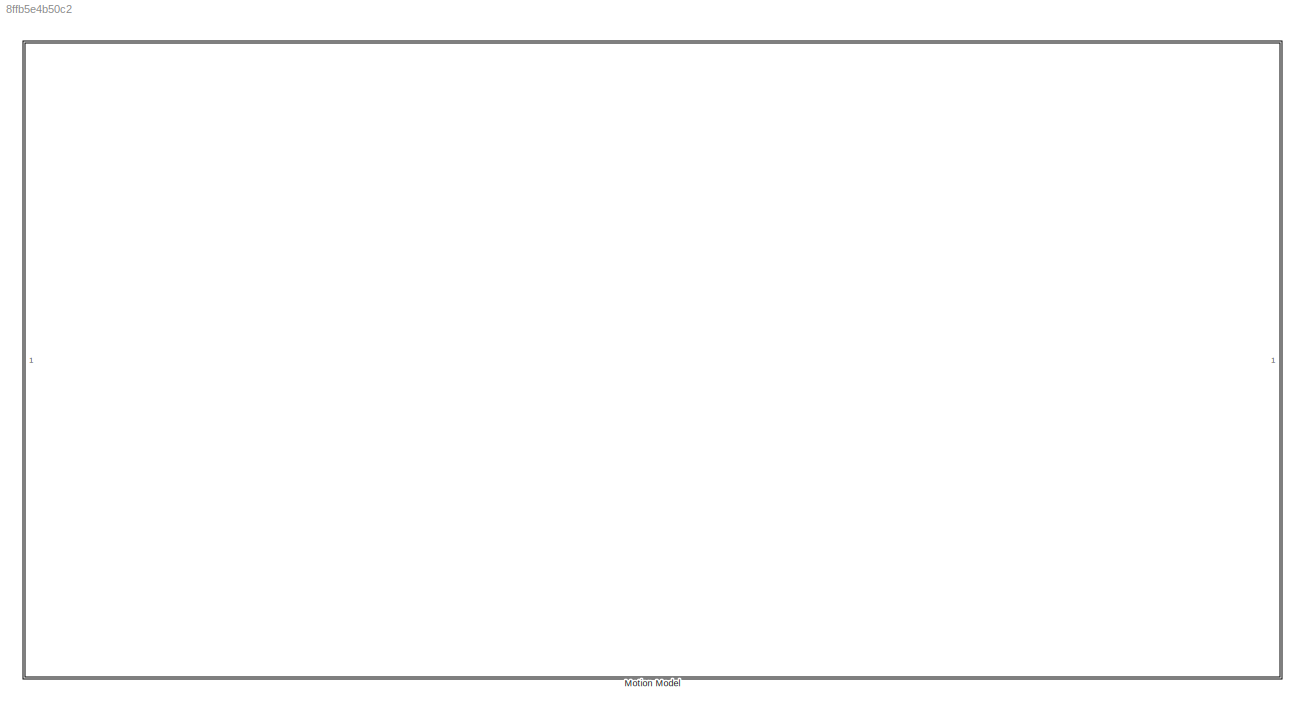
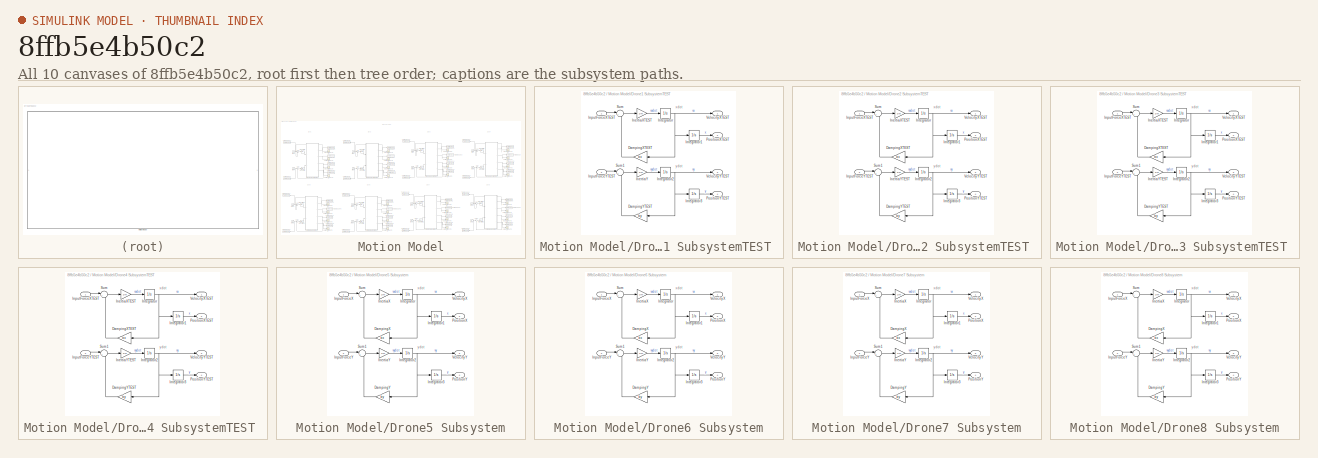
[diagram: thumbnail index - all 10 canvases of the model, root first then tree order]
MODEL slx_8ffb5e4b50c2
KIND model
CONFIG AbsTol = auto
CONFIG EnableMultiTasking = off
CONFIG FixedStep = auto
CONFIG MaxStep = auto
CONFIG MinStep = auto
CONFIG RelTol = 1e-3
CONFIG SampleTimeConstraint = Unconstrained
CONFIG Solver = VariableStepAuto
CONFIG SolverName = VariableStepAuto
CONFIG StartTime = tStart 
CONFIG StopTime = tFinal
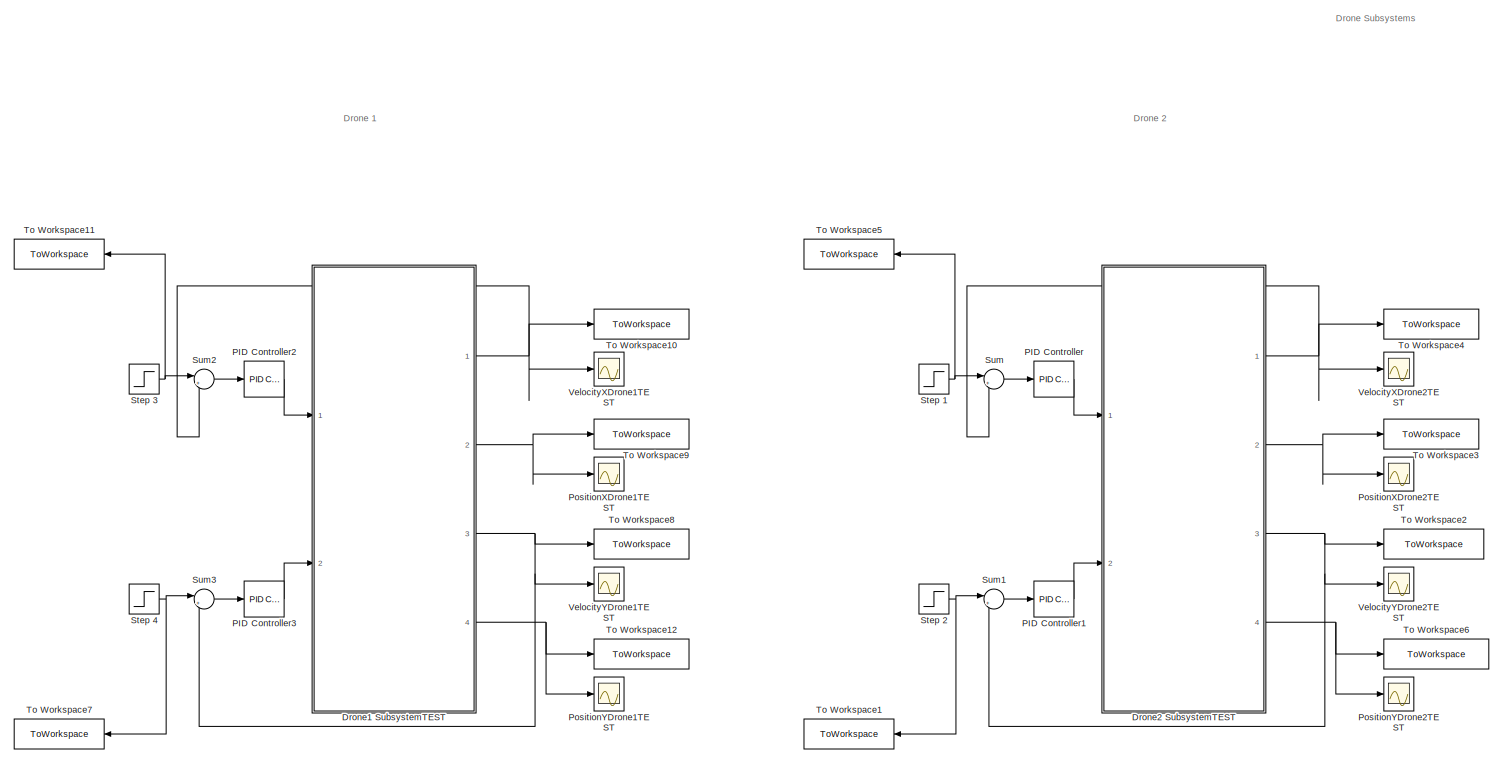
[diagram: Motion Model - part 1/4, top left region]
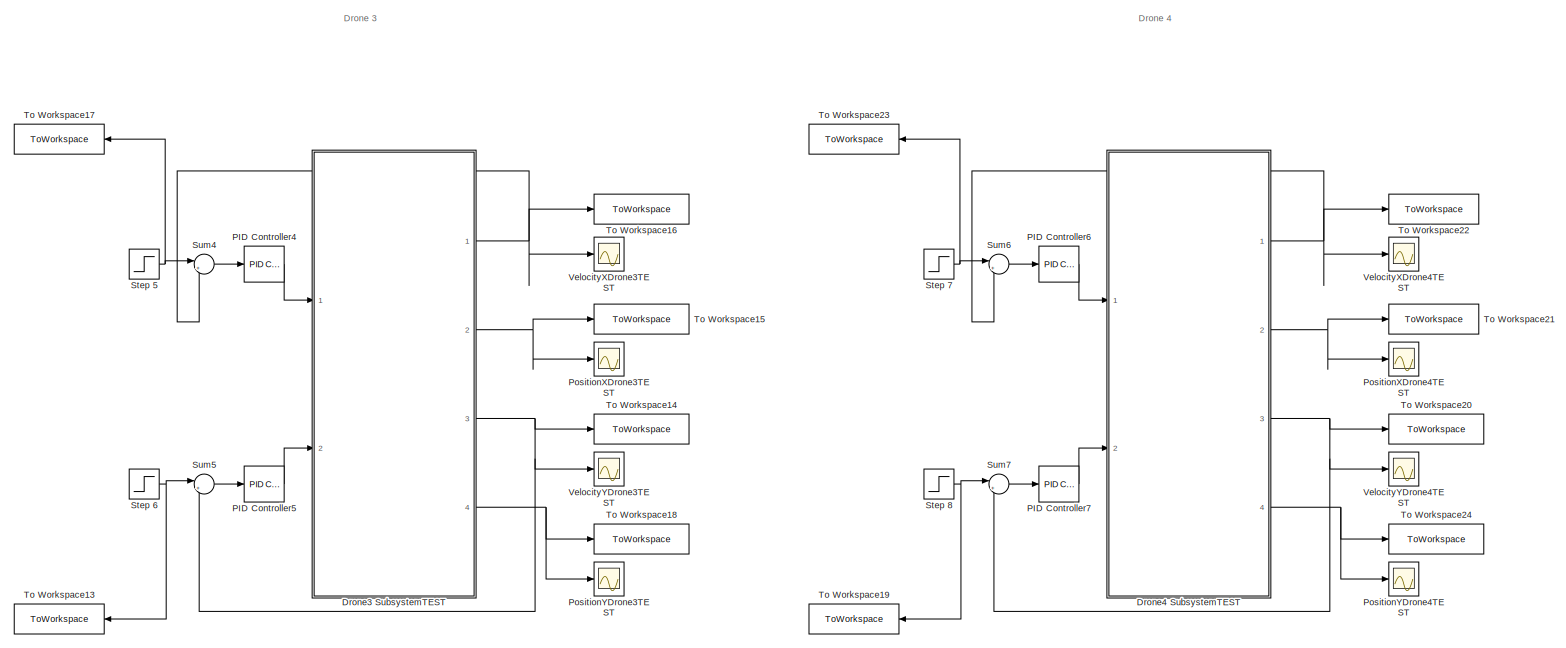
[diagram: Motion Model - part 2/4, top right region]
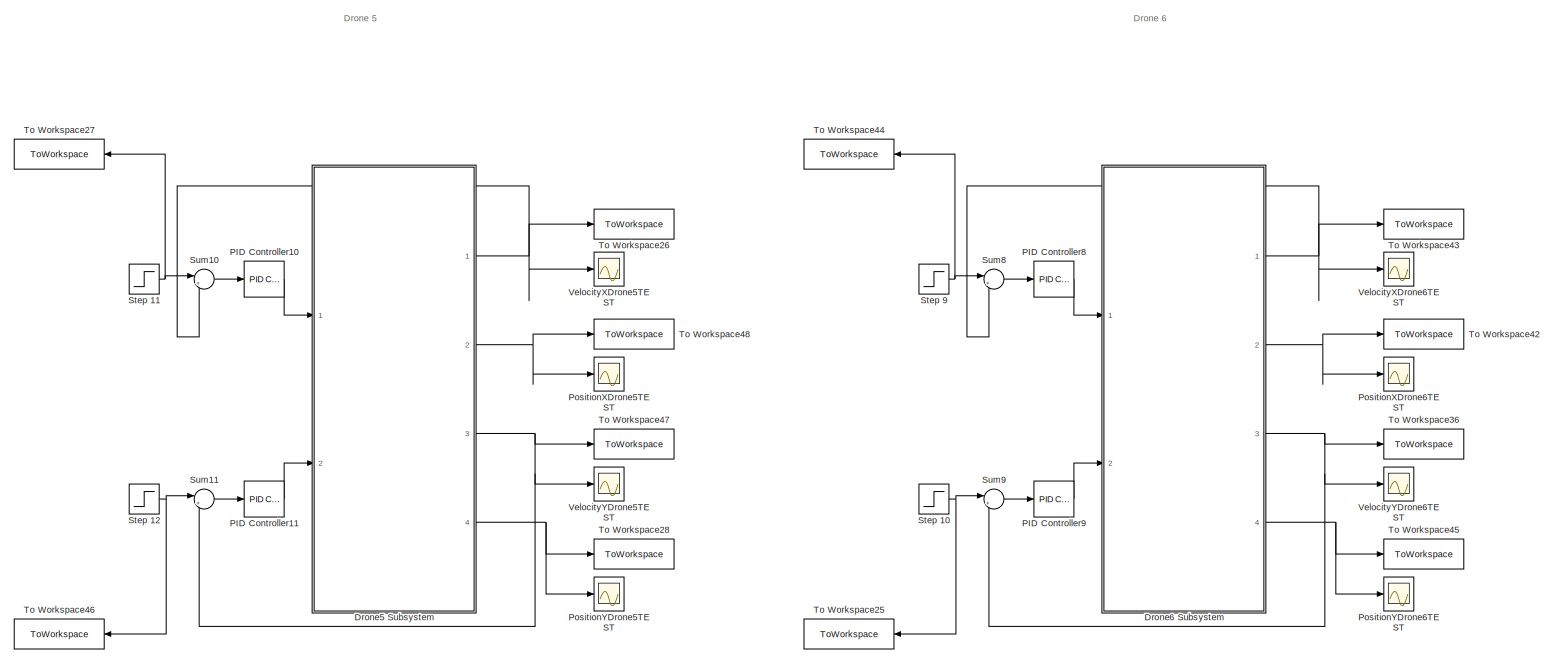
[diagram: Motion Model - part 3/4, bottom left region]
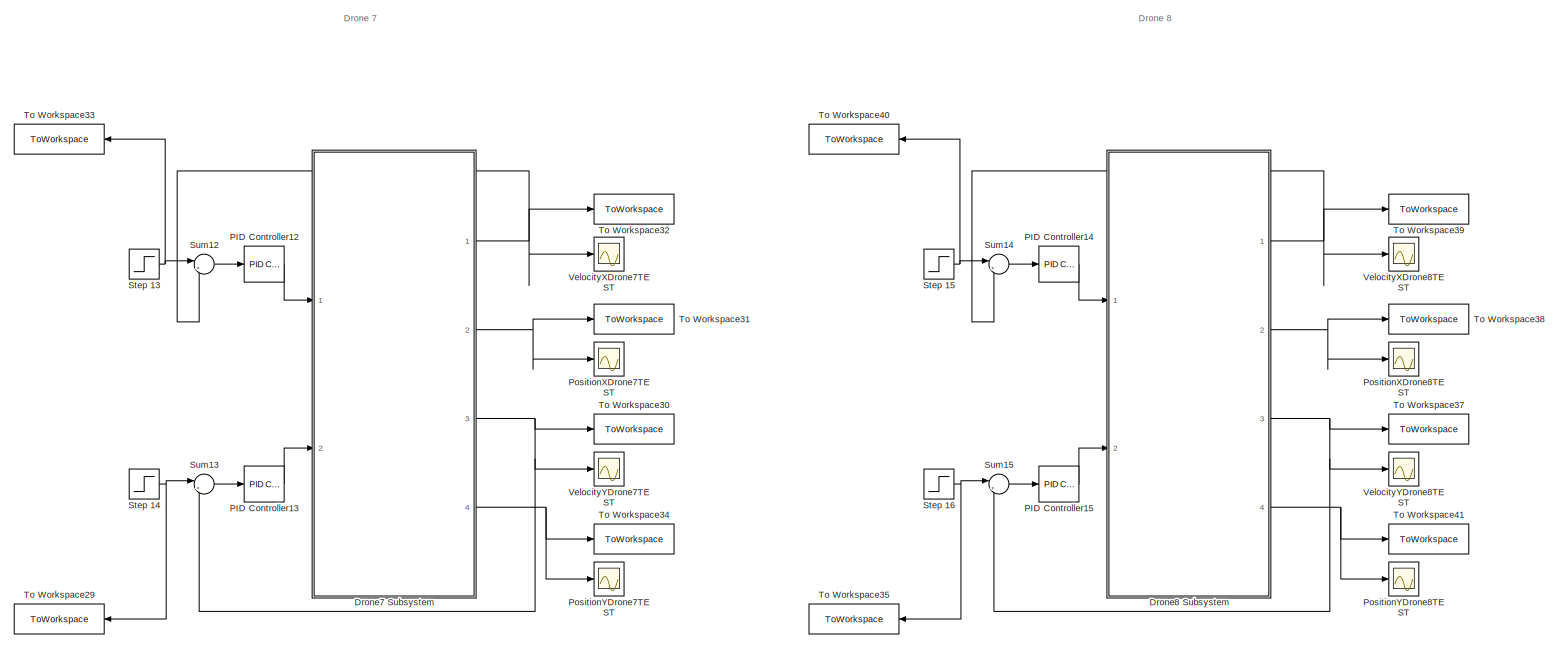
[diagram: Motion Model - part 4/4, bottom right region]
BLOCK [SubSystem] Motion Model
  Ports = []
  RequestExecContextInheritance = off
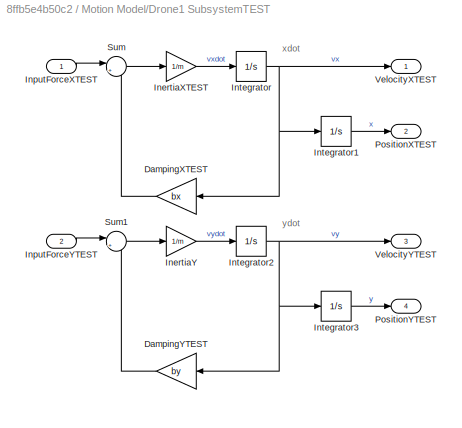
BLOCK [SubSystem] Motion Model/Drone1 SubsystemTEST 
  Ports = [2, 4]
  RequestExecContextInheritance = off
BLOCK [Gain] Motion Model/Drone1 SubsystemTEST /DampingXTEST 
  Gain = bx
  OutDataTypeStr = Inherit: Inherit via internal rule
  ParamDataTypeStr = Inherit: Inherit via internal rule
  SaturateOnIntegerOverflow = off
BLOCK [Gain] Motion Model/Drone1 SubsystemTEST /DampingYTEST
  Gain = by
  OutDataTypeStr = Inherit: Inherit via internal rule
  ParamDataTypeStr = Inherit: Inherit via internal rule
  SaturateOnIntegerOverflow = off
BLOCK [Gain] Motion Model/Drone1 SubsystemTEST /InertiaXTEST
  Gain = 1/m
  OutDataTypeStr = Inherit: Inherit via internal rule
  ParamDataTypeStr = Inherit: Inherit via internal rule
  SaturateOnIntegerOverflow = off
BLOCK [Gain] Motion Model/Drone1 SubsystemTEST /InertiaY
  Gain = 1/m
  OutDataTypeStr = Inherit: Inherit via internal rule
  ParamDataTypeStr = Inherit: Inherit via internal rule
  SaturateOnIntegerOverflow = off
BLOCK [Inport] Motion Model/Drone1 SubsystemTEST /InputForceXTEST
  IconDisplay = Port number
BLOCK [Inport] Motion Model/Drone1 SubsystemTEST /InputForceYTEST
  IconDisplay = Port number
  Port = 2
BLOCK [Integrator] Motion Model/Drone1 SubsystemTEST /Integrator
  InitialCondition = vx10
  Ports = [1, 1]
BLOCK [Integrator] Motion Model/Drone1 SubsystemTEST /Integrator1
  InitialCondition = x10
  Ports = [1, 1]
BLOCK [Integrator] Motion Model/Drone1 SubsystemTEST /Integrator2
  InitialCondition = vy10
  Ports = [1, 1]
BLOCK [Integrator] Motion Model/Drone1 SubsystemTEST /Integrator3
  InitialCondition = y10
  Ports = [1, 1]
BLOCK [Outport] Motion Model/Drone1 SubsystemTEST /PositionXTEST
  IconDisplay = Port number
  Port = 2
BLOCK [Outport] Motion Model/Drone1 SubsystemTEST /PositionYTEST
  IconDisplay = Port number
  Port = 4
BLOCK [Sum] Motion Model/Drone1 SubsystemTEST /Sum
  IconShape = round
  InputSameDT = off
  Inputs = |+-
  OutDataTypeStr = Inherit: Inherit via internal rule
  Ports = [2, 1]
  SaturateOnIntegerOverflow = off
BLOCK [Sum] Motion Model/Drone1 SubsystemTEST /Sum1
  IconShape = round
  InputSameDT = off
  Inputs = |+-
  OutDataTypeStr = Inherit: Inherit via internal rule
  Ports = [2, 1]
  SaturateOnIntegerOverflow = off
BLOCK [Outport] Motion Model/Drone1 SubsystemTEST /VelocityXTEST
  IconDisplay = Port number
BLOCK [Outport] Motion Model/Drone1 SubsystemTEST /VelocityYTEST
  IconDisplay = Port number
  Port = 3
BLOCK [SubSystem] Motion Model/Drone2 SubsystemTEST 
  Ports = [2, 4]
  RequestExecContextInheritance = off
BLOCK [Gain] Motion Model/Drone2 SubsystemTEST /DampingXTEST 
  Gain = bx
  OutDataTypeStr = Inherit: Inherit via internal rule
  ParamDataTypeStr = Inherit: Inherit via internal rule
  SaturateOnIntegerOverflow = off
BLOCK [Gain] Motion Model/Drone2 SubsystemTEST /DampingYTEST
  Gain = by
  OutDataTypeStr = Inherit: Inherit via internal rule
  ParamDataTypeStr = Inherit: Inherit via internal rule
  SaturateOnIntegerOverflow = off
BLOCK [Gain] Motion Model/Drone2 SubsystemTEST /InertiaXTEST
  Gain = 1/m
  OutDataTypeStr = Inherit: Inherit via internal rule
  ParamDataTypeStr = Inherit: Inherit via internal rule
  SaturateOnIntegerOverflow = off
BLOCK [Gain] Motion Model/Drone2 SubsystemTEST /InertiaYTEST
  Gain = 1/m
  OutDataTypeStr = Inherit: Inherit via internal rule
  ParamDataTypeStr = Inherit: Inherit via internal rule
  SaturateOnIntegerOverflow = off
BLOCK [Inport] Motion Model/Drone2 SubsystemTEST /InputForceXTEST
  IconDisplay = Port number
BLOCK [Inport] Motion Model/Drone2 SubsystemTEST /InputForceYTEST
  IconDisplay = Port number
  Port = 2
BLOCK [Integrator] Motion Model/Drone2 SubsystemTEST /Integrator
  InitialCondition = vx20
  Ports = [1, 1]
BLOCK [Integrator] Motion Model/Drone2 SubsystemTEST /Integrator1
  InitialCondition = x20
  Ports = [1, 1]
BLOCK [Integrator] Motion Model/Drone2 SubsystemTEST /Integrator2
  InitialCondition = vy20
  Ports = [1, 1]
BLOCK [Integrator] Motion Model/Drone2 SubsystemTEST /Integrator3
  InitialCondition = y20
  Ports = [1, 1]
BLOCK [Outport] Motion Model/Drone2 SubsystemTEST /PositionXTEST
  IconDisplay = Port number
  Port = 2
BLOCK [Outport] Motion Model/Drone2 SubsystemTEST /PositionYTEST
  IconDisplay = Port number
  Port = 4
BLOCK [Sum] Motion Model/Drone2 SubsystemTEST /Sum
  IconShape = round
  InputSameDT = off
  Inputs = |+-
  OutDataTypeStr = Inherit: Inherit via internal rule
  Ports = [2, 1]
  SaturateOnIntegerOverflow = off
BLOCK [Sum] Motion Model/Drone2 SubsystemTEST /Sum1
  IconShape = round
  InputSameDT = off
  Inputs = |+-
  OutDataTypeStr = Inherit: Inherit via internal rule
  Ports = [2, 1]
  SaturateOnIntegerOverflow = off
BLOCK [Outport] Motion Model/Drone2 SubsystemTEST /VelocityXTEST
  IconDisplay = Port number
BLOCK [Outport] Motion Model/Drone2 SubsystemTEST /VelocityYTEST
  IconDisplay = Port number
  Port = 3
BLOCK [SubSystem] Motion Model/Drone3 SubsystemTEST 
  Ports = [2, 4]
  RequestExecContextInheritance = off
BLOCK [Gain] Motion Model/Drone3 SubsystemTEST /DampingXTEST 
  Gain = bx
  OutDataTypeStr = Inherit: Inherit via internal rule
  ParamDataTypeStr = Inherit: Inherit via internal rule
  SaturateOnIntegerOverflow = off
BLOCK [Gain] Motion Model/Drone3 SubsystemTEST /DampingYTEST
  Gain = by
  OutDataTypeStr = Inherit: Inherit via internal rule
  ParamDataTypeStr = Inherit: Inherit via internal rule
  SaturateOnIntegerOverflow = off
BLOCK [Gain] Motion Model/Drone3 SubsystemTEST /InertiaXTEST
  Gain = 1/m
  OutDataTypeStr = Inherit: Inherit via internal rule
  ParamDataTypeStr = Inherit: Inherit via internal rule
  SaturateOnIntegerOverflow = off
BLOCK [Gain] Motion Model/Drone3 SubsystemTEST /InertiaYTEST
  Gain = 1/m
  OutDataTypeStr = Inherit: Inherit via internal rule
  ParamDataTypeStr = Inherit: Inherit via internal rule
  SaturateOnIntegerOverflow = off
BLOCK [Inport] Motion Model/Drone3 SubsystemTEST /InputForceXTEST
  IconDisplay = Port number
BLOCK [Inport] Motion Model/Drone3 SubsystemTEST /InputForceYTEST
  IconDisplay = Port number
  Port = 2
BLOCK [Integrator] Motion Model/Drone3 SubsystemTEST /Integrator
  InitialCondition = vx30
  Ports = [1, 1]
BLOCK [Integrator] Motion Model/Drone3 SubsystemTEST /Integrator1
  InitialCondition = x30
  Ports = [1, 1]
BLOCK [Integrator] Motion Model/Drone3 SubsystemTEST /Integrator2
  InitialCondition = vy30
  Ports = [1, 1]
BLOCK [Integrator] Motion Model/Drone3 SubsystemTEST /Integrator3
  InitialCondition = y30
  Ports = [1, 1]
BLOCK [Outport] Motion Model/Drone3 SubsystemTEST /PositionXTEST
  IconDisplay = Port number
  Port = 2
BLOCK [Outport] Motion Model/Drone3 SubsystemTEST /PositionYTEST
  IconDisplay = Port number
  Port = 4
BLOCK [Sum] Motion Model/Drone3 SubsystemTEST /Sum
  IconShape = round
  InputSameDT = off
  Inputs = |+-
  OutDataTypeStr = Inherit: Inherit via internal rule
  Ports = [2, 1]
  SaturateOnIntegerOverflow = off
BLOCK [Sum] Motion Model/Drone3 SubsystemTEST /Sum1
  IconShape = round
  InputSameDT = off
  Inputs = |+-
  OutDataTypeStr = Inherit: Inherit via internal rule
  Ports = [2, 1]
  SaturateOnIntegerOverflow = off
BLOCK [Outport] Motion Model/Drone3 SubsystemTEST /VelocityXTEST
  IconDisplay = Port number
BLOCK [Outport] Motion Model/Drone3 SubsystemTEST /VelocityYTEST
  IconDisplay = Port number
  Port = 3
BLOCK [SubSystem] Motion Model/Drone4 SubsystemTEST 
  Ports = [2, 4]
  RequestExecContextInheritance = off
BLOCK [Gain] Motion Model/Drone4 SubsystemTEST /DampingXTEST 
  Gain = bx
  OutDataTypeStr = Inherit: Inherit via internal rule
  ParamDataTypeStr = Inherit: Inherit via internal rule
  SaturateOnIntegerOverflow = off
BLOCK [Gain] Motion Model/Drone4 SubsystemTEST /DampingYTEST
  Gain = by
  OutDataTypeStr = Inherit: Inherit via internal rule
  ParamDataTypeStr = Inherit: Inherit via internal rule
  SaturateOnIntegerOverflow = off
BLOCK [Gain] Motion Model/Drone4 SubsystemTEST /InertiaXTEST
  Gain = 1/m
  OutDataTypeStr = Inherit: Inherit via internal rule
  ParamDataTypeStr = Inherit: Inherit via internal rule
  SaturateOnIntegerOverflow = off
BLOCK [Gain] Motion Model/Drone4 SubsystemTEST /InertiaYTEST
  Gain = 1/m
  OutDataTypeStr = Inherit: Inherit via internal rule
  ParamDataTypeStr = Inherit: Inherit via internal rule
  SaturateOnIntegerOverflow = off
BLOCK [Inport] Motion Model/Drone4 SubsystemTEST /InputForceXTEST
  IconDisplay = Port number
BLOCK [Inport] Motion Model/Drone4 SubsystemTEST /InputForceYTEST
  IconDisplay = Port number
  Port = 2
BLOCK [Integrator] Motion Model/Drone4 SubsystemTEST /Integrator
  InitialCondition = vx40
  Ports = [1, 1]
BLOCK [Integrator] Motion Model/Drone4 SubsystemTEST /Integrator1
  InitialCondition = x40
  Ports = [1, 1]
BLOCK [Integrator] Motion Model/Drone4 SubsystemTEST /Integrator2
  InitialCondition = vy40
  Ports = [1, 1]
BLOCK [Integrator] Motion Model/Drone4 SubsystemTEST /Integrator3
  InitialCondition = y40
  Ports = [1, 1]
BLOCK [Outport] Motion Model/Drone4 SubsystemTEST /PositionXTEST
  IconDisplay = Port number
  Port = 2
BLOCK [Outport] Motion Model/Drone4 SubsystemTEST /PositionYTEST
  IconDisplay = Port number
  Port = 4
BLOCK [Sum] Motion Model/Drone4 SubsystemTEST /Sum
  IconShape = round
  InputSameDT = off
  Inputs = |+-
  OutDataTypeStr = Inherit: Inherit via internal rule
  Ports = [2, 1]
  SaturateOnIntegerOverflow = off
BLOCK [Sum] Motion Model/Drone4 SubsystemTEST /Sum1
  IconShape = round
  InputSameDT = off
  Inputs = |+-
  OutDataTypeStr = Inherit: Inherit via internal rule
  Ports = [2, 1]
  SaturateOnIntegerOverflow = off
BLOCK [Outport] Motion Model/Drone4 SubsystemTEST /VelocityXTEST
  IconDisplay = Port number
BLOCK [Outport] Motion Model/Drone4 SubsystemTEST /VelocityYTEST
  IconDisplay = Port number
  Port = 3
BLOCK [SubSystem] Motion Model/Drone5 Subsystem
  Ports = [2, 4]
  RequestExecContextInheritance = off
BLOCK [Gain] Motion Model/Drone5 Subsystem/DampingX 
  Gain = bx
  OutDataTypeStr = Inherit: Inherit via internal rule
  ParamDataTypeStr = Inherit: Inherit via internal rule
  SaturateOnIntegerOverflow = off
BLOCK [Gain] Motion Model/Drone5 Subsystem/DampingY
  Gain = by
  OutDataTypeStr = Inherit: Inherit via internal rule
  ParamDataTypeStr = Inherit: Inherit via internal rule
  SaturateOnIntegerOverflow = off
BLOCK [Gain] Motion Model/Drone5 Subsystem/InertiaX
  Gain = 1/m
  OutDataTypeStr = Inherit: Inherit via internal rule
  ParamDataTypeStr = Inherit: Inherit via internal rule
  SaturateOnIntegerOverflow = off
BLOCK [Gain] Motion Model/Drone5 Subsystem/InertiaY
  Gain = 1/m
  OutDataTypeStr = Inherit: Inherit via internal rule
  ParamDataTypeStr = Inherit: Inherit via internal rule
  SaturateOnIntegerOverflow = off
BLOCK [Inport] Motion Model/Drone5 Subsystem/InputForceX
  IconDisplay = Port number
BLOCK [Inport] Motion Model/Drone5 Subsystem/InputForceY
  IconDisplay = Port number
  Port = 2
BLOCK [Integrator] Motion Model/Drone5 Subsystem/Integrator
  InitialCondition = vx50
  Ports = [1, 1]
BLOCK [Integrator] Motion Model/Drone5 Subsystem/Integrator1
  InitialCondition = x50
  Ports = [1, 1]
BLOCK [Integrator] Motion Model/Drone5 Subsystem/Integrator2
  InitialCondition = vy50
  Ports = [1, 1]
BLOCK [Integrator] Motion Model/Drone5 Subsystem/Integrator3
  InitialCondition = y50
  Ports = [1, 1]
BLOCK [Outport] Motion Model/Drone5 Subsystem/PositionX
  IconDisplay = Port number
  Port = 2
BLOCK [Outport] Motion Model/Drone5 Subsystem/PositionY
  IconDisplay = Port number
  Port = 4
BLOCK [Sum] Motion Model/Drone5 Subsystem/Sum
  IconShape = round
  InputSameDT = off
  Inputs = |+-
  OutDataTypeStr = Inherit: Inherit via internal rule
  Ports = [2, 1]
  SaturateOnIntegerOverflow = off
BLOCK [Sum] Motion Model/Drone5 Subsystem/Sum1
  IconShape = round
  InputSameDT = off
  Inputs = |+-
  OutDataTypeStr = Inherit: Inherit via internal rule
  Ports = [2, 1]
  SaturateOnIntegerOverflow = off
BLOCK [Outport] Motion Model/Drone5 Subsystem/VelocityX
  IconDisplay = Port number
BLOCK [Outport] Motion Model/Drone5 Subsystem/VelocityY
  IconDisplay = Port number
  Port = 3
BLOCK [SubSystem] Motion Model/Drone6 Subsystem
  Ports = [2, 4]
  RequestExecContextInheritance = off
BLOCK [Gain] Motion Model/Drone6 Subsystem/DampingX 
  Gain = bx
  OutDataTypeStr = Inherit: Inherit via internal rule
  ParamDataTypeStr = Inherit: Inherit via internal rule
  SaturateOnIntegerOverflow = off
BLOCK [Gain] Motion Model/Drone6 Subsystem/DampingY
  Gain = by
  OutDataTypeStr = Inherit: Inherit via internal rule
  ParamDataTypeStr = Inherit: Inherit via internal rule
  SaturateOnIntegerOverflow = off
BLOCK [Gain] Motion Model/Drone6 Subsystem/InertiaX
  Gain = 1/m
  OutDataTypeStr = Inherit: Inherit via internal rule
  ParamDataTypeStr = Inherit: Inherit via internal rule
  SaturateOnIntegerOverflow = off
BLOCK [Gain] Motion Model/Drone6 Subsystem/InertiaY
  Gain = 1/m
  OutDataTypeStr = Inherit: Inherit via internal rule
  ParamDataTypeStr = Inherit: Inherit via internal rule
  SaturateOnIntegerOverflow = off
BLOCK [Inport] Motion Model/Drone6 Subsystem/InputForceX
  IconDisplay = Port number
BLOCK [Inport] Motion Model/Drone6 Subsystem/InputForceY
  IconDisplay = Port number
  Port = 2
BLOCK [Integrator] Motion Model/Drone6 Subsystem/Integrator
  InitialCondition = vx60
  Ports = [1, 1]
BLOCK [Integrator] Motion Model/Drone6 Subsystem/Integrator1
  InitialCondition = x60
  Ports = [1, 1]
BLOCK [Integrator] Motion Model/Drone6 Subsystem/Integrator2
  InitialCondition = vy60
  Ports = [1, 1]
BLOCK [Integrator] Motion Model/Drone6 Subsystem/Integrator3
  InitialCondition = y60
  Ports = [1, 1]
BLOCK [Outport] Motion Model/Drone6 Subsystem/PositionX
  IconDisplay = Port number
  Port = 2
BLOCK [Outport] Motion Model/Drone6 Subsystem/PositionY
  IconDisplay = Port number
  Port = 4
BLOCK [Sum] Motion Model/Drone6 Subsystem/Sum
  IconShape = round
  InputSameDT = off
  Inputs = |+-
  OutDataTypeStr = Inherit: Inherit via internal rule
  Ports = [2, 1]
  SaturateOnIntegerOverflow = off
BLOCK [Sum] Motion Model/Drone6 Subsystem/Sum1
  IconShape = round
  InputSameDT = off
  Inputs = |+-
  OutDataTypeStr = Inherit: Inherit via internal rule
  Ports = [2, 1]
  SaturateOnIntegerOverflow = off
BLOCK [Outport] Motion Model/Drone6 Subsystem/VelocityX
  IconDisplay = Port number
BLOCK [Outport] Motion Model/Drone6 Subsystem/VelocityY
  IconDisplay = Port number
  Port = 3
BLOCK [SubSystem] Motion Model/Drone7 Subsystem
  Ports = [2, 4]
  RequestExecContextInheritance = off
BLOCK [Gain] Motion Model/Drone7 Subsystem/DampingX 
  Gain = bx
  OutDataTypeStr = Inherit: Inherit via internal rule
  ParamDataTypeStr = Inherit: Inherit via internal rule
  SaturateOnIntegerOverflow = off
BLOCK [Gain] Motion Model/Drone7 Subsystem/DampingY
  Gain = by
  OutDataTypeStr = Inherit: Inherit via internal rule
  ParamDataTypeStr = Inherit: Inherit via internal rule
  SaturateOnIntegerOverflow = off
BLOCK [Gain] Motion Model/Drone7 Subsystem/InertiaX
  Gain = 1/m
  OutDataTypeStr = Inherit: Inherit via internal rule
  ParamDataTypeStr = Inherit: Inherit via internal rule
  SaturateOnIntegerOverflow = off
BLOCK [Gain] Motion Model/Drone7 Subsystem/InertiaY
  Gain = 1/m
  OutDataTypeStr = Inherit: Inherit via internal rule
  ParamDataTypeStr = Inherit: Inherit via internal rule
  SaturateOnIntegerOverflow = off
BLOCK [Inport] Motion Model/Drone7 Subsystem/InputForceX
  IconDisplay = Port number
BLOCK [Inport] Motion Model/Drone7 Subsystem/InputForceY
  IconDisplay = Port number
  Port = 2
BLOCK [Integrator] Motion Model/Drone7 Subsystem/Integrator
  InitialCondition = vx70
  Ports = [1, 1]
BLOCK [Integrator] Motion Model/Drone7 Subsystem/Integrator1
  InitialCondition = x70
  Ports = [1, 1]
BLOCK [Integrator] Motion Model/Drone7 Subsystem/Integrator2
  InitialCondition = vy70
  Ports = [1, 1]
BLOCK [Integrator] Motion Model/Drone7 Subsystem/Integrator3
  InitialCondition = y70
  Ports = [1, 1]
BLOCK [Outport] Motion Model/Drone7 Subsystem/PositionX
  IconDisplay = Port number
  Port = 2
BLOCK [Outport] Motion Model/Drone7 Subsystem/PositionY
  IconDisplay = Port number
  Port = 4
BLOCK [Sum] Motion Model/Drone7 Subsystem/Sum
  IconShape = round
  InputSameDT = off
  Inputs = |+-
  OutDataTypeStr = Inherit: Inherit via internal rule
  Ports = [2, 1]
  SaturateOnIntegerOverflow = off
BLOCK [Sum] Motion Model/Drone7 Subsystem/Sum1
  IconShape = round
  InputSameDT = off
  Inputs = |+-
  OutDataTypeStr = Inherit: Inherit via internal rule
  Ports = [2, 1]
  SaturateOnIntegerOverflow = off
BLOCK [Outport] Motion Model/Drone7 Subsystem/VelocityX
  IconDisplay = Port number
BLOCK [Outport] Motion Model/Drone7 Subsystem/VelocityY
  IconDisplay = Port number
  Port = 3
BLOCK [SubSystem] Motion Model/Drone8 Subsystem
  Ports = [2, 4]
  RequestExecContextInheritance = off
BLOCK [Gain] Motion Model/Drone8 Subsystem/DampingX 
  Gain = bx
  OutDataTypeStr = Inherit: Inherit via internal rule
  ParamDataTypeStr = Inherit: Inherit via internal rule
  SaturateOnIntegerOverflow = off
BLOCK [Gain] Motion Model/Drone8 Subsystem/DampingY
  Gain = by
  OutDataTypeStr = Inherit: Inherit via internal rule
  ParamDataTypeStr = Inherit: Inherit via internal rule
  SaturateOnIntegerOverflow = off
BLOCK [Gain] Motion Model/Drone8 Subsystem/InertiaX
  Gain = 1/m
  OutDataTypeStr = Inherit: Inherit via internal rule
  ParamDataTypeStr = Inherit: Inherit via internal rule
  SaturateOnIntegerOverflow = off
BLOCK [Gain] Motion Model/Drone8 Subsystem/InertiaY
  Gain = 1/m
  OutDataTypeStr = Inherit: Inherit via internal rule
  ParamDataTypeStr = Inherit: Inherit via internal rule
  SaturateOnIntegerOverflow = off
BLOCK [Inport] Motion Model/Drone8 Subsystem/InputForceX
  IconDisplay = Port number
BLOCK [Inport] Motion Model/Drone8 Subsystem/InputForceY
  IconDisplay = Port number
  Port = 2
BLOCK [Integrator] Motion Model/Drone8 Subsystem/Integrator
  InitialCondition = vx80
  Ports = [1, 1]
BLOCK [Integrator] Motion Model/Drone8 Subsystem/Integrator1
  InitialCondition = x80
  Ports = [1, 1]
BLOCK [Integrator] Motion Model/Drone8 Subsystem/Integrator2
  InitialCondition = vy80
  Ports = [1, 1]
BLOCK [Integrator] Motion Model/Drone8 Subsystem/Integrator3
  InitialCondition = y80
  Ports = [1, 1]
BLOCK [Outport] Motion Model/Drone8 Subsystem/PositionX
  IconDisplay = Port number
  Port = 2
BLOCK [Outport] Motion Model/Drone8 Subsystem/PositionY
  IconDisplay = Port number
  Port = 4
BLOCK [Sum] Motion Model/Drone8 Subsystem/Sum
  IconShape = round
  InputSameDT = off
  Inputs = |+-
  OutDataTypeStr = Inherit: Inherit via internal rule
  Ports = [2, 1]
  SaturateOnIntegerOverflow = off
BLOCK [Sum] Motion Model/Drone8 Subsystem/Sum1
  IconShape = round
  InputSameDT = off
  Inputs = |+-
  OutDataTypeStr = Inherit: Inherit via internal rule
  Ports = [2, 1]
  SaturateOnIntegerOverflow = off
BLOCK [Outport] Motion Model/Drone8 Subsystem/VelocityX
  IconDisplay = Port number
BLOCK [Outport] Motion Model/Drone8 Subsystem/VelocityY
  IconDisplay = Port number
  Port = 3
BLOCK [Reference] Motion Model/PID Controller  REF=simulink/Continuous/PID Controller
  Ports = [1, 1]
  SourceBlock = simulink/Continuous/PID Controller
  SourceProductBaseCode = SL
  SourceProductName = Simulink
  SourceType = PID 1dof
BLOCK [Reference] Motion Model/PID Controller1  REF=simulink/Continuous/PID Controller
  Ports = [1, 1]
  SourceBlock = simulink/Continuous/PID Controller
  SourceProductBaseCode = SL
  SourceProductName = Simulink
  SourceType = PID 1dof
BLOCK [Reference] Motion Model/PID Controller10  REF=simulink/Continuous/PID Controller
  Ports = [1, 1]
  SourceBlock = simulink/Continuous/PID Controller
  SourceProductBaseCode = SL
  SourceProductName = Simulink
  SourceType = PID 1dof
BLOCK [Reference] Motion Model/PID Controller11  REF=simulink/Continuous/PID Controller
  Ports = [1, 1]
  SourceBlock = simulink/Continuous/PID Controller
  SourceProductBaseCode = SL
  SourceProductName = Simulink
  SourceType = PID 1dof
BLOCK [Reference] Motion Model/PID Controller12  REF=simulink/Continuous/PID Controller
  Ports = [1, 1]
  SourceBlock = simulink/Continuous/PID Controller
  SourceProductBaseCode = SL
  SourceProductName = Simulink
  SourceType = PID 1dof
BLOCK [Reference] Motion Model/PID Controller13  REF=simulink/Continuous/PID Controller
  Ports = [1, 1]
  SourceBlock = simulink/Continuous/PID Controller
  SourceProductBaseCode = SL
  SourceProductName = Simulink
  SourceType = PID 1dof
BLOCK [Reference] Motion Model/PID Controller14  REF=simulink/Continuous/PID Controller
  Ports = [1, 1]
  SourceBlock = simulink/Continuous/PID Controller
  SourceProductBaseCode = SL
  SourceProductName = Simulink
  SourceType = PID 1dof
BLOCK [Reference] Motion Model/PID Controller15  REF=simulink/Continuous/PID Controller
  Ports = [1, 1]
  SourceBlock = simulink/Continuous/PID Controller
  SourceProductBaseCode = SL
  SourceProductName = Simulink
  SourceType = PID 1dof
BLOCK [Reference] Motion Model/PID Controller2  REF=simulink/Continuous/PID Controller
  Ports = [1, 1]
  SourceBlock = simulink/Continuous/PID Controller
  SourceProductBaseCode = SL
  SourceProductName = Simulink
  SourceType = PID 1dof
BLOCK [Reference] Motion Model/PID Controller3  REF=simulink/Continuous/PID Controller
  Ports = [1, 1]
  SourceBlock = simulink/Continuous/PID Controller
  SourceProductBaseCode = SL
  SourceProductName = Simulink
  SourceType = PID 1dof
BLOCK [Reference] Motion Model/PID Controller4  REF=simulink/Continuous/PID Controller
  Ports = [1, 1]
  SourceBlock = simulink/Continuous/PID Controller
  SourceProductBaseCode = SL
  SourceProductName = Simulink
  SourceType = PID 1dof
BLOCK [Reference] Motion Model/PID Controller5  REF=simulink/Continuous/PID Controller
  Ports = [1, 1]
  SourceBlock = simulink/Continuous/PID Controller
  SourceProductBaseCode = SL
  SourceProductName = Simulink
  SourceType = PID 1dof
BLOCK [Reference] Motion Model/PID Controller6  REF=simulink/Continuous/PID Controller
  Ports = [1, 1]
  SourceBlock = simulink/Continuous/PID Controller
  SourceProductBaseCode = SL
  SourceProductName = Simulink
  SourceType = PID 1dof
BLOCK [Reference] Motion Model/PID Controller7  REF=simulink/Continuous/PID Controller
  Ports = [1, 1]
  SourceBlock = simulink/Continuous/PID Controller
  SourceProductBaseCode = SL
  SourceProductName = Simulink
  SourceType = PID 1dof
BLOCK [Reference] Motion Model/PID Controller8  REF=simulink/Continuous/PID Controller
  Ports = [1, 1]
  SourceBlock = simulink/Continuous/PID Controller
  SourceProductBaseCode = SL
  SourceProductName = Simulink
  SourceType = PID 1dof
BLOCK [Reference] Motion Model/PID Controller9  REF=simulink/Continuous/PID Controller
  Ports = [1, 1]
  SourceBlock = simulink/Continuous/PID Controller
  SourceProductBaseCode = SL
  SourceProductName = Simulink
  SourceType = PID 1dof
BLOCK [Scope] Motion Model/PositionXDrone1TEST
  Floating = off
  NumInputPorts = 1
  Ports = [1]
  ScopeSpecificationString = Simulink.scopes.TimeScopeBlockCfg('CurrentConfiguration', extmgr.ConfigurationSet(extmgr.Configuration('Core','General UI',true),extmgr.Configuration('Core','Source UI',true),extmgr.Configuration('Sources','WiredSimulink',true,'DataLoggingVariableName','ScopeData1'),extmgr.Configuration('Visuals','Time Domain',true,'SerializedDisplays',{struct('MinYLimReal','-75.81743','MaxYLimReal','8.42416','YLa...<+1453ch>
BLOCK [Scope] Motion Model/PositionXDrone2TEST
  Floating = off
  NumInputPorts = 1
  Ports = [1]
  ScopeSpecificationString = Simulink.scopes.TimeScopeBlockCfg('CurrentConfiguration', extmgr.ConfigurationSet(extmgr.Configuration('Core','General UI',true),extmgr.Configuration('Core','Source UI',true),extmgr.Configuration('Sources','WiredSimulink',true,'DataLoggingVariableName','ScopeData2'),extmgr.Configuration('Visuals','Time Domain',true,'SerializedDisplays',{struct('MinYLimReal','-24.62449','MaxYLimReal','13.84717','YL...<+1459ch>
BLOCK [Scope] Motion Model/PositionXDrone3TEST
  Floating = off
  NumInputPorts = 1
  Ports = [1]
  ScopeSpecificationString = Simulink.scopes.TimeScopeBlockCfg('CurrentConfiguration', extmgr.ConfigurationSet(extmgr.Configuration('Core','General UI',true),extmgr.Configuration('Core','Source UI',true),extmgr.Configuration('Sources','WiredSimulink',true,'DataLoggingVariableName','ScopeData3'),extmgr.Configuration('Visuals','Time Domain',true,'SerializedDisplays',{struct('MinYLimReal','-75.81743','MaxYLimReal','8.42416','YLa...<+1457ch>
BLOCK [Scope] Motion Model/PositionXDrone4TEST
  Floating = off
  NumInputPorts = 1
  Ports = [1]
  ScopeSpecificationString = Simulink.scopes.TimeScopeBlockCfg('CurrentConfiguration', extmgr.ConfigurationSet(extmgr.Configuration('Core','General UI',true),extmgr.Configuration('Core','Source UI',true),extmgr.Configuration('Sources','WiredSimulink',true,'DataLoggingVariableName','ScopeData4'),extmgr.Configuration('Visuals','Time Domain',true,'SerializedDisplays',{struct('MinYLimReal','-75.81743','MaxYLimReal','8.42416','YLa...<+1457ch>
BLOCK [Scope] Motion Model/PositionXDrone5TEST
  Floating = off
  NumInputPorts = 1
  Ports = [1]
  ScopeSpecificationString = Simulink.scopes.TimeScopeBlockCfg('CurrentConfiguration', extmgr.ConfigurationSet(extmgr.Configuration('Core','General UI',true),extmgr.Configuration('Core','Source UI',true),extmgr.Configuration('Sources','WiredSimulink',true,'DataLoggingVariableName','ScopeData5'),extmgr.Configuration('Visuals','Time Domain',true,'SerializedDisplays',{struct('MinYLimReal','-75.81743','MaxYLimReal','8.42416','YLa...<+1453ch>
BLOCK [Scope] Motion Model/PositionXDrone6TEST
  Floating = off
  NumInputPorts = 1
  Ports = [1]
  ScopeSpecificationString = Simulink.scopes.TimeScopeBlockCfg('CurrentConfiguration', extmgr.ConfigurationSet(extmgr.Configuration('Core','General UI',true),extmgr.Configuration('Core','Source UI',true),extmgr.Configuration('Sources','WiredSimulink',true,'DataLoggingVariableName','ScopeData6'),extmgr.Configuration('Visuals','Time Domain',true,'SerializedDisplays',{struct('MinYLimReal','-75.81743','MaxYLimReal','8.42416','YLa...<+1453ch>
BLOCK [Scope] Motion Model/PositionXDrone7TEST
  Floating = off
  NumInputPorts = 1
  Ports = [1]
  ScopeSpecificationString = Simulink.scopes.TimeScopeBlockCfg('CurrentConfiguration', extmgr.ConfigurationSet(extmgr.Configuration('Core','General UI',true),extmgr.Configuration('Core','Source UI',true),extmgr.Configuration('Sources','WiredSimulink',true,'DataLoggingVariableName','ScopeData7'),extmgr.Configuration('Visuals','Time Domain',true,'SerializedDisplays',{struct('MinYLimReal','-75.81743','MaxYLimReal','8.42416','YLa...<+1453ch>
BLOCK [Scope] Motion Model/PositionXDrone8TEST
  Floating = off
  NumInputPorts = 1
  Ports = [1]
  ScopeSpecificationString = Simulink.scopes.TimeScopeBlockCfg('CurrentConfiguration', extmgr.ConfigurationSet(extmgr.Configuration('Core','General UI',true),extmgr.Configuration('Core','Source UI',true),extmgr.Configuration('Sources','WiredSimulink',true,'DataLoggingVariableName','ScopeData8'),extmgr.Configuration('Visuals','Time Domain',true,'SerializedDisplays',{struct('MinYLimReal','-75.81743','MaxYLimReal','8.42416','YLa...<+1453ch>
BLOCK [Scope] Motion Model/PositionYDrone1TEST
  Floating = off
  NumInputPorts = 1
  Ports = [1]
  ScopeSpecificationString = Simulink.scopes.TimeScopeBlockCfg('CurrentConfiguration', extmgr.ConfigurationSet(extmgr.Configuration('Core','General UI',true),extmgr.Configuration('Core','Source UI',true),extmgr.Configuration('Sources','WiredSimulink',true,'DataLoggingVariableName','ScopeData9'),extmgr.Configuration('Visuals','Time Domain',true,'SerializedDisplays',{struct('MinYLimReal','-12488.44039','MaxYLimReal','112495.937...<+1759ch>
BLOCK [Scope] Motion Model/PositionYDrone2TEST
  Floating = off
  NumInputPorts = 1
  Ports = [1]
  ScopeSpecificationString = Simulink.scopes.TimeScopeBlockCfg('CurrentConfiguration', extmgr.ConfigurationSet(extmgr.Configuration('Core','General UI',true),extmgr.Configuration('Core','Source UI',true),extmgr.Configuration('Sources','WiredSimulink',true,'DataLoggingVariableName','ScopeData10'),extmgr.Configuration('Visuals','Time Domain',true,'SerializedDisplays',{struct('MinYLimReal','-24.62449','MaxYLimReal','13.84717','Y...<+1460ch>
BLOCK [Scope] Motion Model/PositionYDrone3TEST
  Floating = off
  NumInputPorts = 1
  Ports = [1]
  ScopeSpecificationString = Simulink.scopes.TimeScopeBlockCfg('CurrentConfiguration', extmgr.ConfigurationSet(extmgr.Configuration('Core','General UI',true),extmgr.Configuration('Core','Source UI',true),extmgr.Configuration('Sources','WiredSimulink',true,'DataLoggingVariableName','ScopeData11'),extmgr.Configuration('Visuals','Time Domain',true,'SerializedDisplays',{struct('MinYLimReal','-12488.44039','MaxYLimReal','112495.93...<+1760ch>
BLOCK [Scope] Motion Model/PositionYDrone4TEST
  Floating = off
  NumInputPorts = 1
  Ports = [1]
  ScopeSpecificationString = Simulink.scopes.TimeScopeBlockCfg('CurrentConfiguration', extmgr.ConfigurationSet(extmgr.Configuration('Core','General UI',true),extmgr.Configuration('Core','Source UI',true),extmgr.Configuration('Sources','WiredSimulink',true,'DataLoggingVariableName','ScopeData12'),extmgr.Configuration('Visuals','Time Domain',true,'SerializedDisplays',{struct('MinYLimReal','-12488.44039','MaxYLimReal','112495.93...<+1760ch>
BLOCK [Scope] Motion Model/PositionYDrone5TEST
  Floating = off
  NumInputPorts = 1
  Ports = [1]
  ScopeSpecificationString = Simulink.scopes.TimeScopeBlockCfg('CurrentConfiguration', extmgr.ConfigurationSet(extmgr.Configuration('Core','General UI',true),extmgr.Configuration('Core','Source UI',true),extmgr.Configuration('Sources','WiredSimulink',true,'DataLoggingVariableName','ScopeData13'),extmgr.Configuration('Visuals','Time Domain',true,'SerializedDisplays',{struct('MinYLimReal','-12488.44039','MaxYLimReal','112495.93...<+1760ch>
BLOCK [Scope] Motion Model/PositionYDrone6TEST
  Floating = off
  NumInputPorts = 1
  Ports = [1]
  ScopeSpecificationString = Simulink.scopes.TimeScopeBlockCfg('CurrentConfiguration', extmgr.ConfigurationSet(extmgr.Configuration('Core','General UI',true),extmgr.Configuration('Core','Source UI',true),extmgr.Configuration('Sources','WiredSimulink',true,'DataLoggingVariableName','ScopeData14'),extmgr.Configuration('Visuals','Time Domain',true,'SerializedDisplays',{struct('MinYLimReal','-12488.44039','MaxYLimReal','112495.93...<+1760ch>
BLOCK [Scope] Motion Model/PositionYDrone7TEST
  Floating = off
  NumInputPorts = 1
  Ports = [1]
  ScopeSpecificationString = Simulink.scopes.TimeScopeBlockCfg('CurrentConfiguration', extmgr.ConfigurationSet(extmgr.Configuration('Core','General UI',true),extmgr.Configuration('Core','Source UI',true),extmgr.Configuration('Sources','WiredSimulink',true,'DataLoggingVariableName','ScopeData15'),extmgr.Configuration('Visuals','Time Domain',true,'SerializedDisplays',{struct('MinYLimReal','-12488.44039','MaxYLimReal','112495.93...<+1760ch>
BLOCK [Scope] Motion Model/PositionYDrone8TEST
  Floating = off
  NumInputPorts = 1
  Ports = [1]
  ScopeSpecificationString = Simulink.scopes.TimeScopeBlockCfg('CurrentConfiguration', extmgr.ConfigurationSet(extmgr.Configuration('Core','General UI',true),extmgr.Configuration('Core','Source UI',true),extmgr.Configuration('Sources','WiredSimulink',true,'DataLoggingVariableName','ScopeData16'),extmgr.Configuration('Visuals','Time Domain',true,'SerializedDisplays',{struct('MinYLimReal','-12488.44039','MaxYLimReal','112495.93...<+1760ch>
BLOCK [Step] Motion Model/Step 1
  After = VelocityStarX2TEST
  SampleTime = 0
  Time = 0
BLOCK [Step] Motion Model/Step 10
  After = VelocityStarY6TEST
  SampleTime = 0
  Time = 0
BLOCK [Step] Motion Model/Step 11
  After = VelocityStarX5TEST
  SampleTime = 0
  Time = 0
BLOCK [Step] Motion Model/Step 12
  After = VelocityStarY5TEST
  SampleTime = 0
  Time = 0
BLOCK [Step] Motion Model/Step 13
  After = VelocityStarX7TEST
  SampleTime = 0
  Time = 0
BLOCK [Step] Motion Model/Step 14
  After = VelocityStarY7TEST
  SampleTime = 0
  Time = 0
BLOCK [Step] Motion Model/Step 15
  After = VelocityStarX8TEST
  SampleTime = 0
  Time = 0
BLOCK [Step] Motion Model/Step 16
  After = VelocityStarY8TEST
  SampleTime = 0
  Time = 0
BLOCK [Step] Motion Model/Step 2
  After = VelocityStarY2TEST
  SampleTime = 0
  Time = 0
BLOCK [Step] Motion Model/Step 3
  After = VelocityStarX1TEST
  SampleTime = 0
  Time = 0
BLOCK [Step] Motion Model/Step 4
  After = VelocityStarY1TEST
  SampleTime = 0
  Time = 0
BLOCK [Step] Motion Model/Step 5
  After = VelocityStarX3TEST
  SampleTime = 0
  Time = 0
BLOCK [Step] Motion Model/Step 6
  After = VelocityStarY3TEST
  SampleTime = 0
  Time = 0
BLOCK [Step] Motion Model/Step 7
  After = VelocityStarX4TEST
  SampleTime = 0
  Time = 0
BLOCK [Step] Motion Model/Step 8
  After = VelocityStarY4TEST
  SampleTime = 0
  Time = 0
BLOCK [Step] Motion Model/Step 9
  After = VelocityStarX6TEST
  SampleTime = 0
  Time = 0
BLOCK [Sum] Motion Model/Sum
  IconShape = round
  InputSameDT = off
  Inputs = |+-
  OutDataTypeStr = Inherit: Inherit via internal rule
  Ports = [2, 1]
  SaturateOnIntegerOverflow = off
BLOCK [Sum] Motion Model/Sum1
  IconShape = round
  InputSameDT = off
  Inputs = |+-
  OutDataTypeStr = Inherit: Inherit via internal rule
  Ports = [2, 1]
  SaturateOnIntegerOverflow = off
BLOCK [Sum] Motion Model/Sum10
  IconShape = round
  InputSameDT = off
  Inputs = |+-
  OutDataTypeStr = Inherit: Inherit via internal rule
  Ports = [2, 1]
  SaturateOnIntegerOverflow = off
BLOCK [Sum] Motion Model/Sum11
  IconShape = round
  InputSameDT = off
  Inputs = |+-
  OutDataTypeStr = Inherit: Inherit via internal rule
  Ports = [2, 1]
  SaturateOnIntegerOverflow = off
BLOCK [Sum] Motion Model/Sum12
  IconShape = round
  InputSameDT = off
  Inputs = |+-
  OutDataTypeStr = Inherit: Inherit via internal rule
  Ports = [2, 1]
  SaturateOnIntegerOverflow = off
BLOCK [Sum] Motion Model/Sum13
  IconShape = round
  InputSameDT = off
  Inputs = |+-
  OutDataTypeStr = Inherit: Inherit via internal rule
  Ports = [2, 1]
  SaturateOnIntegerOverflow = off
BLOCK [Sum] Motion Model/Sum14
  IconShape = round
  InputSameDT = off
  Inputs = |+-
  OutDataTypeStr = Inherit: Inherit via internal rule
  Ports = [2, 1]
  SaturateOnIntegerOverflow = off
BLOCK [Sum] Motion Model/Sum15
  IconShape = round
  InputSameDT = off
  Inputs = |+-
  OutDataTypeStr = Inherit: Inherit via internal rule
  Ports = [2, 1]
  SaturateOnIntegerOverflow = off
BLOCK [Sum] Motion Model/Sum2
  IconShape = round
  InputSameDT = off
  Inputs = |+-
  OutDataTypeStr = Inherit: Inherit via internal rule
  Ports = [2, 1]
  SaturateOnIntegerOverflow = off
BLOCK [Sum] Motion Model/Sum3
  IconShape = round
  InputSameDT = off
  Inputs = |+-
  OutDataTypeStr = Inherit: Inherit via internal rule
  Ports = [2, 1]
  SaturateOnIntegerOverflow = off
BLOCK [Sum] Motion Model/Sum4
  IconShape = round
  InputSameDT = off
  Inputs = |+-
  OutDataTypeStr = Inherit: Inherit via internal rule
  Ports = [2, 1]
  SaturateOnIntegerOverflow = off
BLOCK [Sum] Motion Model/Sum5
  IconShape = round
  InputSameDT = off
  Inputs = |+-
  OutDataTypeStr = Inherit: Inherit via internal rule
  Ports = [2, 1]
  SaturateOnIntegerOverflow = off
BLOCK [Sum] Motion Model/Sum6
  IconShape = round
  InputSameDT = off
  Inputs = |+-
  OutDataTypeStr = Inherit: Inherit via internal rule
  Ports = [2, 1]
  SaturateOnIntegerOverflow = off
BLOCK [Sum] Motion Model/Sum7
  IconShape = round
  InputSameDT = off
  Inputs = |+-
  OutDataTypeStr = Inherit: Inherit via internal rule
  Ports = [2, 1]
  SaturateOnIntegerOverflow = off
BLOCK [Sum] Motion Model/Sum8
  IconShape = round
  InputSameDT = off
  Inputs = |+-
  OutDataTypeStr = Inherit: Inherit via internal rule
  Ports = [2, 1]
  SaturateOnIntegerOverflow = off
BLOCK [Sum] Motion Model/Sum9
  IconShape = round
  InputSameDT = off
  Inputs = |+-
  OutDataTypeStr = Inherit: Inherit via internal rule
  Ports = [2, 1]
  SaturateOnIntegerOverflow = off
BLOCK [ToWorkspace] Motion Model/To Workspace1
  FixptAsFi = on
  MaxDataPoints = inf
  Ports = [1]
  SampleTime = -1
  Save2DSignal = 3-D array (concatenate along third dimension)
  VariableName = VelocityStarY2TEST
BLOCK [ToWorkspace] Motion Model/To Workspace10
  FixptAsFi = on
  MaxDataPoints = inf
  Ports = [1]
  SampleTime = -1
  Save2DSignal = 3-D array (concatenate along third dimension)
  VariableName = VelocityXDrone1TEST
BLOCK [ToWorkspace] Motion Model/To Workspace11
  FixptAsFi = on
  MaxDataPoints = inf
  Ports = [1]
  SampleTime = -1
  Save2DSignal = 3-D array (concatenate along third dimension)
  VariableName = VelocityStarX1TEST
BLOCK [ToWorkspace] Motion Model/To Workspace12
  FixptAsFi = on
  MaxDataPoints = inf
  Ports = [1]
  SampleTime = -1
  Save2DSignal = 3-D array (concatenate along third dimension)
  VariableName = PositionYDrone1TEST
BLOCK [ToWorkspace] Motion Model/To Workspace13
  FixptAsFi = on
  MaxDataPoints = inf
  Ports = [1]
  SampleTime = -1
  Save2DSignal = 3-D array (concatenate along third dimension)
  VariableName = VelocityStarY3TEST
BLOCK [ToWorkspace] Motion Model/To Workspace14
  FixptAsFi = on
  MaxDataPoints = inf
  Ports = [1]
  SampleTime = -1
  Save2DSignal = 3-D array (concatenate along third dimension)
  VariableName = VelocityYDrone3TEST
BLOCK [ToWorkspace] Motion Model/To Workspace15
  FixptAsFi = on
  MaxDataPoints = inf
  Ports = [1]
  SampleTime = -1
  Save2DSignal = 3-D array (concatenate along third dimension)
  VariableName = PositionXDrone3TEST
BLOCK [ToWorkspace] Motion Model/To Workspace16
  FixptAsFi = on
  MaxDataPoints = inf
  Ports = [1]
  SampleTime = -1
  Save2DSignal = 3-D array (concatenate along third dimension)
  VariableName = VelocityXDrone3TEST
BLOCK [ToWorkspace] Motion Model/To Workspace17
  FixptAsFi = on
  MaxDataPoints = inf
  Ports = [1]
  SampleTime = -1
  Save2DSignal = 3-D array (concatenate along third dimension)
  VariableName = VelocityStarX3TEST
BLOCK [ToWorkspace] Motion Model/To Workspace18
  FixptAsFi = on
  MaxDataPoints = inf
  Ports = [1]
  SampleTime = -1
  Save2DSignal = 3-D array (concatenate along third dimension)
  VariableName = PositionYDrone3TEST
BLOCK [ToWorkspace] Motion Model/To Workspace19
  FixptAsFi = on
  MaxDataPoints = inf
  Ports = [1]
  SampleTime = -1
  Save2DSignal = 3-D array (concatenate along third dimension)
  VariableName = VelocityStarY4TEST
BLOCK [ToWorkspace] Motion Model/To Workspace2
  FixptAsFi = on
  MaxDataPoints = inf
  Ports = [1]
  SampleTime = -1
  Save2DSignal = 3-D array (concatenate along third dimension)
  VariableName = VelocityYDrone2TEST
BLOCK [ToWorkspace] Motion Model/To Workspace20
  FixptAsFi = on
  MaxDataPoints = inf
  Ports = [1]
  SampleTime = -1
  Save2DSignal = 3-D array (concatenate along third dimension)
  VariableName = VelocityYDrone4TEST
BLOCK [ToWorkspace] Motion Model/To Workspace21
  FixptAsFi = on
  MaxDataPoints = inf
  Ports = [1]
  SampleTime = -1
  Save2DSignal = 3-D array (concatenate along third dimension)
  VariableName = PositionXDrone4TEST
BLOCK [ToWorkspace] Motion Model/To Workspace22
  FixptAsFi = on
  MaxDataPoints = inf
  Ports = [1]
  SampleTime = -1
  Save2DSignal = 3-D array (concatenate along third dimension)
  VariableName = VelocityXDrone4TEST
BLOCK [ToWorkspace] Motion Model/To Workspace23
  FixptAsFi = on
  MaxDataPoints = inf
  Ports = [1]
  SampleTime = -1
  Save2DSignal = 3-D array (concatenate along third dimension)
  VariableName = VelocityStarX4TEST
BLOCK [ToWorkspace] Motion Model/To Workspace24
  FixptAsFi = on
  MaxDataPoints = inf
  Ports = [1]
  SampleTime = -1
  Save2DSignal = 3-D array (concatenate along third dimension)
  VariableName = PositionYDrone4TEST
BLOCK [ToWorkspace] Motion Model/To Workspace25
  FixptAsFi = on
  MaxDataPoints = inf
  Ports = [1]
  SampleTime = -1
  Save2DSignal = 3-D array (concatenate along third dimension)
  VariableName = VelocityStarY6TEST
BLOCK [ToWorkspace] Motion Model/To Workspace26
  FixptAsFi = on
  MaxDataPoints = inf
  Ports = [1]
  SampleTime = -1
  Save2DSignal = 3-D array (concatenate along third dimension)
  VariableName = VelocityXDrone5TEST
BLOCK [ToWorkspace] Motion Model/To Workspace27
  FixptAsFi = on
  MaxDataPoints = inf
  Ports = [1]
  SampleTime = -1
  Save2DSignal = 3-D array (concatenate along third dimension)
  VariableName = VelocityStarX5TEST
BLOCK [ToWorkspace] Motion Model/To Workspace28
  FixptAsFi = on
  MaxDataPoints = inf
  Ports = [1]
  SampleTime = -1
  Save2DSignal = 3-D array (concatenate along third dimension)
  VariableName = PositionYDrone5TEST
BLOCK [ToWorkspace] Motion Model/To Workspace29
  FixptAsFi = on
  MaxDataPoints = inf
  Ports = [1]
  SampleTime = -1
  Save2DSignal = 3-D array (concatenate along third dimension)
  VariableName = VelocityStarY7TEST
BLOCK [ToWorkspace] Motion Model/To Workspace3
  FixptAsFi = on
  MaxDataPoints = inf
  Ports = [1]
  SampleTime = -1
  Save2DSignal = 3-D array (concatenate along third dimension)
  VariableName = PositionXDrone2TEST
BLOCK [ToWorkspace] Motion Model/To Workspace30
  FixptAsFi = on
  MaxDataPoints = inf
  Ports = [1]
  SampleTime = -1
  Save2DSignal = 3-D array (concatenate along third dimension)
  VariableName = VelocityYDrone7TEST
BLOCK [ToWorkspace] Motion Model/To Workspace31
  FixptAsFi = on
  MaxDataPoints = inf
  Ports = [1]
  SampleTime = -1
  Save2DSignal = 3-D array (concatenate along third dimension)
  VariableName = PositionXDrone7TEST
BLOCK [ToWorkspace] Motion Model/To Workspace32
  FixptAsFi = on
  MaxDataPoints = inf
  Ports = [1]
  SampleTime = -1
  Save2DSignal = 3-D array (concatenate along third dimension)
  VariableName = VelocityXDrone7TEST
BLOCK [ToWorkspace] Motion Model/To Workspace33
  FixptAsFi = on
  MaxDataPoints = inf
  Ports = [1]
  SampleTime = -1
  Save2DSignal = 3-D array (concatenate along third dimension)
  VariableName = VelocityStarX7TEST
BLOCK [ToWorkspace] Motion Model/To Workspace34
  FixptAsFi = on
  MaxDataPoints = inf
  Ports = [1]
  SampleTime = -1
  Save2DSignal = 3-D array (concatenate along third dimension)
  VariableName = PositionYDrone7TEST
BLOCK [ToWorkspace] Motion Model/To Workspace35
  FixptAsFi = on
  MaxDataPoints = inf
  Ports = [1]
  SampleTime = -1
  Save2DSignal = 3-D array (concatenate along third dimension)
  VariableName = VelocityStarY8TEST
BLOCK [ToWorkspace] Motion Model/To Workspace36
  FixptAsFi = on
  MaxDataPoints = inf
  Ports = [1]
  SampleTime = -1
  Save2DSignal = 3-D array (concatenate along third dimension)
  VariableName = VelocityYDrone6TEST
BLOCK [ToWorkspace] Motion Model/To Workspace37
  FixptAsFi = on
  MaxDataPoints = inf
  Ports = [1]
  SampleTime = -1
  Save2DSignal = 3-D array (concatenate along third dimension)
  VariableName = VelocityYDrone8TEST
BLOCK [ToWorkspace] Motion Model/To Workspace38
  FixptAsFi = on
  MaxDataPoints = inf
  Ports = [1]
  SampleTime = -1
  Save2DSignal = 3-D array (concatenate along third dimension)
  VariableName = PositionXDrone8TEST
BLOCK [ToWorkspace] Motion Model/To Workspace39
  FixptAsFi = on
  MaxDataPoints = inf
  Ports = [1]
  SampleTime = -1
  Save2DSignal = 3-D array (concatenate along third dimension)
  VariableName = VelocityXDrone8TEST
BLOCK [ToWorkspace] Motion Model/To Workspace4
  FixptAsFi = on
  MaxDataPoints = inf
  Ports = [1]
  SampleTime = -1
  Save2DSignal = 3-D array (concatenate along third dimension)
  VariableName = VelocityXDrone2TEST
BLOCK [ToWorkspace] Motion Model/To Workspace40
  FixptAsFi = on
  MaxDataPoints = inf
  Ports = [1]
  SampleTime = -1
  Save2DSignal = 3-D array (concatenate along third dimension)
  VariableName = VelocityStarX8TEST
BLOCK [ToWorkspace] Motion Model/To Workspace41
  FixptAsFi = on
  MaxDataPoints = inf
  Ports = [1]
  SampleTime = -1
  Save2DSignal = 3-D array (concatenate along third dimension)
  VariableName = PositionYDrone8TEST
BLOCK [ToWorkspace] Motion Model/To Workspace42
  FixptAsFi = on
  MaxDataPoints = inf
  Ports = [1]
  SampleTime = -1
  Save2DSignal = 3-D array (concatenate along third dimension)
  VariableName = PositionXDrone6TEST
BLOCK [ToWorkspace] Motion Model/To Workspace43
  FixptAsFi = on
  MaxDataPoints = inf
  Ports = [1]
  SampleTime = -1
  Save2DSignal = 3-D array (concatenate along third dimension)
  VariableName = VelocityXDrone6TEST
BLOCK [ToWorkspace] Motion Model/To Workspace44
  FixptAsFi = on
  MaxDataPoints = inf
  Ports = [1]
  SampleTime = -1
  Save2DSignal = 3-D array (concatenate along third dimension)
  VariableName = VelocityStarX6TEST
BLOCK [ToWorkspace] Motion Model/To Workspace45
  FixptAsFi = on
  MaxDataPoints = inf
  Ports = [1]
  SampleTime = -1
  Save2DSignal = 3-D array (concatenate along third dimension)
  VariableName = PositionYDrone6TEST
BLOCK [ToWorkspace] Motion Model/To Workspace46
  FixptAsFi = on
  MaxDataPoints = inf
  Ports = [1]
  SampleTime = -1
  Save2DSignal = 3-D array (concatenate along third dimension)
  VariableName = VelocityStarY5TEST
BLOCK [ToWorkspace] Motion Model/To Workspace47
  FixptAsFi = on
  MaxDataPoints = inf
  Ports = [1]
  SampleTime = -1
  Save2DSignal = 3-D array (concatenate along third dimension)
  VariableName = VelocityYDrone5TEST
BLOCK [ToWorkspace] Motion Model/To Workspace48
  FixptAsFi = on
  MaxDataPoints = inf
  Ports = [1]
  SampleTime = -1
  Save2DSignal = 3-D array (concatenate along third dimension)
  VariableName = PositionXDrone5TEST
BLOCK [ToWorkspace] Motion Model/To Workspace5
  FixptAsFi = on
  MaxDataPoints = inf
  Ports = [1]
  SampleTime = -1
  Save2DSignal = 3-D array (concatenate along third dimension)
  VariableName = VelocityStarX2TEST
BLOCK [ToWorkspace] Motion Model/To Workspace6
  FixptAsFi = on
  MaxDataPoints = inf
  Ports = [1]
  SampleTime = -1
  Save2DSignal = 3-D array (concatenate along third dimension)
  VariableName = PositionYDrone2TEST
BLOCK [ToWorkspace] Motion Model/To Workspace7
  FixptAsFi = on
  MaxDataPoints = inf
  Ports = [1]
  SampleTime = -1
  Save2DSignal = 3-D array (concatenate along third dimension)
  VariableName = VelocityStarY1TEST
BLOCK [ToWorkspace] Motion Model/To Workspace8
  FixptAsFi = on
  MaxDataPoints = inf
  Ports = [1]
  SampleTime = -1
  Save2DSignal = 3-D array (concatenate along third dimension)
  VariableName = VelocityYDrone1TEST
BLOCK [ToWorkspace] Motion Model/To Workspace9
  FixptAsFi = on
  MaxDataPoints = inf
  Ports = [1]
  SampleTime = -1
  Save2DSignal = 3-D array (concatenate along third dimension)
  VariableName = PositionXDrone1TEST
BLOCK [Scope] Motion Model/VelocityXDrone1TEST
  Floating = off
  NumInputPorts = 1
  Ports = [1]
  ScopeSpecificationString = Simulink.scopes.TimeScopeBlockCfg('CurrentConfiguration', extmgr.ConfigurationSet(extmgr.Configuration('Core','General UI',true),extmgr.Configuration('Core','Source UI',true),extmgr.Configuration('Sources','WiredSimulink',true,'DataLoggingVariableName','ScopeData17'),extmgr.Configuration('Visuals','Time Domain',true,'SerializedDisplays',{struct('MinYLimReal','-7.12289','MaxYLimReal','-6.60466','YL...<+1453ch>
BLOCK [Scope] Motion Model/VelocityXDrone2TEST
  Floating = off
  NumInputPorts = 1
  Ports = [1]
  ScopeSpecificationString = Simulink.scopes.TimeScopeBlockCfg('CurrentConfiguration', extmgr.ConfigurationSet(extmgr.Configuration('Core','General UI',true),extmgr.Configuration('Core','Source UI',true),extmgr.Configuration('Sources','WiredSimulink',true,'DataLoggingVariableName','ScopeData18'),extmgr.Configuration('Visuals','Time Domain',true,'SerializedDisplays',{struct('MinYLimReal','-7.12289','MaxYLimReal','-6.60466','YL...<+1453ch>
BLOCK [Scope] Motion Model/VelocityXDrone3TEST
  Floating = off
  NumInputPorts = 1
  Ports = [1]
  ScopeSpecificationString = Simulink.scopes.TimeScopeBlockCfg('CurrentConfiguration', extmgr.ConfigurationSet(extmgr.Configuration('Core','General UI',true),extmgr.Configuration('Core','Source UI',true),extmgr.Configuration('Sources','WiredSimulink',true,'DataLoggingVariableName','ScopeData19'),extmgr.Configuration('Visuals','Time Domain',true,'SerializedDisplays',{struct('MinYLimReal','-7.12289','MaxYLimReal','-6.60466','YL...<+1453ch>
BLOCK [Scope] Motion Model/VelocityXDrone4TEST
  Floating = off
  NumInputPorts = 1
  Ports = [1]
  ScopeSpecificationString = Simulink.scopes.TimeScopeBlockCfg('CurrentConfiguration', extmgr.ConfigurationSet(extmgr.Configuration('Core','General UI',true),extmgr.Configuration('Core','Source UI',true),extmgr.Configuration('Sources','WiredSimulink',true,'DataLoggingVariableName','ScopeData20'),extmgr.Configuration('Visuals','Time Domain',true,'SerializedDisplays',{struct('MinYLimReal','0.09907','MaxYLimReal','0.10684','YLab...<+1453ch>
BLOCK [Scope] Motion Model/VelocityXDrone5TEST
  Floating = off
  NumInputPorts = 1
  Ports = [1]
  ScopeSpecificationString = Simulink.scopes.TimeScopeBlockCfg('CurrentConfiguration', extmgr.ConfigurationSet(extmgr.Configuration('Core','General UI',true),extmgr.Configuration('Core','Source UI',true),extmgr.Configuration('Sources','WiredSimulink',true,'DataLoggingVariableName','ScopeData21'),extmgr.Configuration('Visuals','Time Domain',true,'SerializedDisplays',{struct('MinYLimReal','-7.12289','MaxYLimReal','-6.60466','YL...<+1453ch>
BLOCK [Scope] Motion Model/VelocityXDrone6TEST
  Floating = off
  NumInputPorts = 1
  Ports = [1]
  ScopeSpecificationString = Simulink.scopes.TimeScopeBlockCfg('CurrentConfiguration', extmgr.ConfigurationSet(extmgr.Configuration('Core','General UI',true),extmgr.Configuration('Core','Source UI',true),extmgr.Configuration('Sources','WiredSimulink',true,'DataLoggingVariableName','ScopeData22'),extmgr.Configuration('Visuals','Time Domain',true,'SerializedDisplays',{struct('MinYLimReal','-7.12289','MaxYLimReal','-6.60466','YL...<+1453ch>
BLOCK [Scope] Motion Model/VelocityXDrone7TEST
  Floating = off
  NumInputPorts = 1
  Ports = [1]
  ScopeSpecificationString = Simulink.scopes.TimeScopeBlockCfg('CurrentConfiguration', extmgr.ConfigurationSet(extmgr.Configuration('Core','General UI',true),extmgr.Configuration('Core','Source UI',true),extmgr.Configuration('Sources','WiredSimulink',true,'DataLoggingVariableName','ScopeData23'),extmgr.Configuration('Visuals','Time Domain',true,'SerializedDisplays',{struct('MinYLimReal','-7.12289','MaxYLimReal','-6.60466','YL...<+1453ch>
BLOCK [Scope] Motion Model/VelocityXDrone8TEST
  Floating = off
  NumInputPorts = 1
  Ports = [1]
  ScopeSpecificationString = Simulink.scopes.TimeScopeBlockCfg('CurrentConfiguration', extmgr.ConfigurationSet(extmgr.Configuration('Core','General UI',true),extmgr.Configuration('Core','Source UI',true),extmgr.Configuration('Sources','WiredSimulink',true,'DataLoggingVariableName','ScopeData24'),extmgr.Configuration('Visuals','Time Domain',true,'SerializedDisplays',{struct('MinYLimReal','-7.12289','MaxYLimReal','-6.60466','YL...<+1453ch>
BLOCK [Scope] Motion Model/VelocityYDrone1TEST
  Floating = off
  NumInputPorts = 1
  Ports = [1]
  ScopeSpecificationString = Simulink.scopes.TimeScopeBlockCfg('CurrentConfiguration', extmgr.ConfigurationSet(extmgr.Configuration('Core','General UI',true),extmgr.Configuration('Core','Source UI',true),extmgr.Configuration('Sources','WiredSimulink',true,'DataLoggingVariableName','ScopeData25'),extmgr.Configuration('Visuals','Time Domain',true,'SerializedDisplays',{struct('MinYLimReal','-9.15911','MaxYLimReal','11.72136','YL...<+1731ch>
BLOCK [Scope] Motion Model/VelocityYDrone2TEST
  Floating = off
  NumInputPorts = 1
  Ports = [1]
  ScopeSpecificationString = Simulink.scopes.TimeScopeBlockCfg('CurrentConfiguration', extmgr.ConfigurationSet(extmgr.Configuration('Core','General UI',true),extmgr.Configuration('Core','Source UI',true),extmgr.Configuration('Sources','WiredSimulink',true,'DataLoggingVariableName','ScopeData26'),extmgr.Configuration('Visuals','Time Domain',true,'SerializedDisplays',{struct('MinYLimReal','-0.10684','MaxYLimReal','-0.09907','YL...<+1457ch>
BLOCK [Scope] Motion Model/VelocityYDrone3TEST
  Floating = off
  NumInputPorts = 1
  Ports = [1]
  ScopeSpecificationString = Simulink.scopes.TimeScopeBlockCfg('CurrentConfiguration', extmgr.ConfigurationSet(extmgr.Configuration('Core','General UI',true),extmgr.Configuration('Core','Source UI',true),extmgr.Configuration('Sources','WiredSimulink',true,'DataLoggingVariableName','ScopeData27'),extmgr.Configuration('Visuals','Time Domain',true,'SerializedDisplays',{struct('MinYLimReal','-9.15911','MaxYLimReal','11.72136','YL...<+1459ch>
BLOCK [Scope] Motion Model/VelocityYDrone4TEST
  Floating = off
  NumInputPorts = 1
  Ports = [1]
  ScopeSpecificationString = Simulink.scopes.TimeScopeBlockCfg('CurrentConfiguration', extmgr.ConfigurationSet(extmgr.Configuration('Core','General UI',true),extmgr.Configuration('Core','Source UI',true),extmgr.Configuration('Sources','WiredSimulink',true,'DataLoggingVariableName','ScopeData28'),extmgr.Configuration('Visuals','Time Domain',true,'SerializedDisplays',{struct('MinYLimReal','-0.10684','MaxYLimReal','-0.09907','YL...<+1733ch>
BLOCK [Scope] Motion Model/VelocityYDrone5TEST
  Floating = off
  NumInputPorts = 1
  Ports = [1]
  ScopeSpecificationString = Simulink.scopes.TimeScopeBlockCfg('CurrentConfiguration', extmgr.ConfigurationSet(extmgr.Configuration('Core','General UI',true),extmgr.Configuration('Core','Source UI',true),extmgr.Configuration('Sources','WiredSimulink',true,'DataLoggingVariableName','ScopeData29'),extmgr.Configuration('Visuals','Time Domain',true,'SerializedDisplays',{struct('MinYLimReal','-9.15911','MaxYLimReal','11.72136','YL...<+1731ch>
BLOCK [Scope] Motion Model/VelocityYDrone6TEST
  Floating = off
  NumInputPorts = 1
  Ports = [1]
  ScopeSpecificationString = Simulink.scopes.TimeScopeBlockCfg('CurrentConfiguration', extmgr.ConfigurationSet(extmgr.Configuration('Core','General UI',true),extmgr.Configuration('Core','Source UI',true),extmgr.Configuration('Sources','WiredSimulink',true,'DataLoggingVariableName','ScopeData30'),extmgr.Configuration('Visuals','Time Domain',true,'SerializedDisplays',{struct('MinYLimReal','-9.15911','MaxYLimReal','11.72136','YL...<+1731ch>
BLOCK [Scope] Motion Model/VelocityYDrone7TEST
  Floating = off
  NumInputPorts = 1
  Ports = [1]
  ScopeSpecificationString = Simulink.scopes.TimeScopeBlockCfg('CurrentConfiguration', extmgr.ConfigurationSet(extmgr.Configuration('Core','General UI',true),extmgr.Configuration('Core','Source UI',true),extmgr.Configuration('Sources','WiredSimulink',true,'DataLoggingVariableName','ScopeData31'),extmgr.Configuration('Visuals','Time Domain',true,'SerializedDisplays',{struct('MinYLimReal','-9.15911','MaxYLimReal','11.72136','YL...<+1731ch>
BLOCK [Scope] Motion Model/VelocityYDrone8TEST
  Floating = off
  NumInputPorts = 1
  Ports = [1]
  ScopeSpecificationString = Simulink.scopes.TimeScopeBlockCfg('CurrentConfiguration', extmgr.ConfigurationSet(extmgr.Configuration('Core','General UI',true),extmgr.Configuration('Core','Source UI',true),extmgr.Configuration('Sources','WiredSimulink',true),extmgr.Configuration('Visuals','Time Domain',true,'SerializedDisplays',{struct('MinYLimReal','-9.15911','MaxYLimReal','11.72136','YLabelReal','','MinYLimMag','0.00000','Max...<+1691ch>
ANNOTATION Motion Model: Drone 1
ANNOTATION Motion Model: Drone 2
ANNOTATION Motion Model: Drone 3
ANNOTATION Motion Model: Drone 4
ANNOTATION Motion Model: Drone 5
ANNOTATION Motion Model: Drone 6
ANNOTATION Motion Model: Drone 7
ANNOTATION Motion Model: Drone 8
ANNOTATION Motion Model: Drone Subsystems
ANNOTATION Motion Model/Drone1 SubsystemTEST : xdot
ANNOTATION Motion Model/Drone1 SubsystemTEST : ydot
ANNOTATION Motion Model/Drone2 SubsystemTEST : xdot
ANNOTATION Motion Model/Drone2 SubsystemTEST : ydot
ANNOTATION Motion Model/Drone3 SubsystemTEST : xdot
ANNOTATION Motion Model/Drone3 SubsystemTEST : ydot
ANNOTATION Motion Model/Drone4 SubsystemTEST : xdot
ANNOTATION Motion Model/Drone4 SubsystemTEST : ydot
ANNOTATION Motion Model/Drone5 Subsystem: xdot
ANNOTATION Motion Model/Drone5 Subsystem: ydot
ANNOTATION Motion Model/Drone6 Subsystem: xdot
ANNOTATION Motion Model/Drone6 Subsystem: ydot
ANNOTATION Motion Model/Drone7 Subsystem: xdot
ANNOTATION Motion Model/Drone7 Subsystem: ydot
ANNOTATION Motion Model/Drone8 Subsystem: xdot
ANNOTATION Motion Model/Drone8 Subsystem: ydot
LINE Motion Model/Drone1 SubsystemTEST /DampingXTEST :1 -> Motion Model/Drone1 SubsystemTEST /Sum:2
LINE Motion Model/Drone1 SubsystemTEST /DampingYTEST:1 -> Motion Model/Drone1 SubsystemTEST /Sum1:2
LINE Motion Model/Drone1 SubsystemTEST /InertiaXTEST:1 -> Motion Model/Drone1 SubsystemTEST /Integrator:1
LINE Motion Model/Drone1 SubsystemTEST /InertiaY:1 -> Motion Model/Drone1 SubsystemTEST /Integrator2:1
LINE Motion Model/Drone1 SubsystemTEST /InputForceXTEST:1 -> Motion Model/Drone1 SubsystemTEST /Sum:1
LINE Motion Model/Drone1 SubsystemTEST /InputForceYTEST:1 -> Motion Model/Drone1 SubsystemTEST /Sum1:1
LINE Motion Model/Drone1 SubsystemTEST /Integrator1:1 -> Motion Model/Drone1 SubsystemTEST /PositionXTEST:1
NET Motion Model/Drone1 SubsystemTEST /Integrator2:1 -> Motion Model/Drone1 SubsystemTEST /DampingYTEST:1, Motion Model/Drone1 SubsystemTEST /Integrator3:1, Motion Model/Drone1 SubsystemTEST /VelocityYTEST:1
LINE Motion Model/Drone1 SubsystemTEST /Integrator3:1 -> Motion Model/Drone1 SubsystemTEST /PositionYTEST:1
NET Motion Model/Drone1 SubsystemTEST /Integrator:1 -> Motion Model/Drone1 SubsystemTEST /DampingXTEST :1, Motion Model/Drone1 SubsystemTEST /Integrator1:1, Motion Model/Drone1 SubsystemTEST /VelocityXTEST:1
LINE Motion Model/Drone1 SubsystemTEST /Sum1:1 -> Motion Model/Drone1 SubsystemTEST /InertiaY:1
LINE Motion Model/Drone1 SubsystemTEST /Sum:1 -> Motion Model/Drone1 SubsystemTEST /InertiaXTEST:1
NET Motion Model/Drone1 SubsystemTEST :1 -> Motion Model/Sum2:2, Motion Model/To Workspace10:1, Motion Model/VelocityXDrone1TEST:1
NET Motion Model/Drone1 SubsystemTEST :2 -> Motion Model/PositionXDrone1TEST:1, Motion Model/To Workspace9:1
NET Motion Model/Drone1 SubsystemTEST :3 -> Motion Model/Sum3:2, Motion Model/To Workspace8:1, Motion Model/VelocityYDrone1TEST:1
NET Motion Model/Drone1 SubsystemTEST :4 -> Motion Model/PositionYDrone1TEST:1, Motion Model/To Workspace12:1
LINE Motion Model/Drone2 SubsystemTEST /DampingXTEST :1 -> Motion Model/Drone2 SubsystemTEST /Sum:2
LINE Motion Model/Drone2 SubsystemTEST /DampingYTEST:1 -> Motion Model/Drone2 SubsystemTEST /Sum1:2
LINE Motion Model/Drone2 SubsystemTEST /InertiaXTEST:1 -> Motion Model/Drone2 SubsystemTEST /Integrator:1
LINE Motion Model/Drone2 SubsystemTEST /InertiaYTEST:1 -> Motion Model/Drone2 SubsystemTEST /Integrator2:1
LINE Motion Model/Drone2 SubsystemTEST /InputForceXTEST:1 -> Motion Model/Drone2 SubsystemTEST /Sum:1
LINE Motion Model/Drone2 SubsystemTEST /InputForceYTEST:1 -> Motion Model/Drone2 SubsystemTEST /Sum1:1
LINE Motion Model/Drone2 SubsystemTEST /Integrator1:1 -> Motion Model/Drone2 SubsystemTEST /PositionXTEST:1
NET Motion Model/Drone2 SubsystemTEST /Integrator2:1 -> Motion Model/Drone2 SubsystemTEST /DampingYTEST:1, Motion Model/Drone2 SubsystemTEST /Integrator3:1, Motion Model/Drone2 SubsystemTEST /VelocityYTEST:1
LINE Motion Model/Drone2 SubsystemTEST /Integrator3:1 -> Motion Model/Drone2 SubsystemTEST /PositionYTEST:1
NET Motion Model/Drone2 SubsystemTEST /Integrator:1 -> Motion Model/Drone2 SubsystemTEST /DampingXTEST :1, Motion Model/Drone2 SubsystemTEST /Integrator1:1, Motion Model/Drone2 SubsystemTEST /VelocityXTEST:1
LINE Motion Model/Drone2 SubsystemTEST /Sum1:1 -> Motion Model/Drone2 SubsystemTEST /InertiaYTEST:1
LINE Motion Model/Drone2 SubsystemTEST /Sum:1 -> Motion Model/Drone2 SubsystemTEST /InertiaXTEST:1
NET Motion Model/Drone2 SubsystemTEST :1 -> Motion Model/Sum:2, Motion Model/To Workspace4:1, Motion Model/VelocityXDrone2TEST:1
NET Motion Model/Drone2 SubsystemTEST :2 -> Motion Model/PositionXDrone2TEST:1, Motion Model/To Workspace3:1
NET Motion Model/Drone2 SubsystemTEST :3 -> Motion Model/Sum1:2, Motion Model/To Workspace2:1, Motion Model/VelocityYDrone2TEST:1
NET Motion Model/Drone2 SubsystemTEST :4 -> Motion Model/PositionYDrone2TEST:1, Motion Model/To Workspace6:1
LINE Motion Model/Drone3 SubsystemTEST /DampingXTEST :1 -> Motion Model/Drone3 SubsystemTEST /Sum:2
LINE Motion Model/Drone3 SubsystemTEST /DampingYTEST:1 -> Motion Model/Drone3 SubsystemTEST /Sum1:2
LINE Motion Model/Drone3 SubsystemTEST /InertiaXTEST:1 -> Motion Model/Drone3 SubsystemTEST /Integrator:1
LINE Motion Model/Drone3 SubsystemTEST /InertiaYTEST:1 -> Motion Model/Drone3 SubsystemTEST /Integrator2:1
LINE Motion Model/Drone3 SubsystemTEST /InputForceXTEST:1 -> Motion Model/Drone3 SubsystemTEST /Sum:1
LINE Motion Model/Drone3 SubsystemTEST /InputForceYTEST:1 -> Motion Model/Drone3 SubsystemTEST /Sum1:1
LINE Motion Model/Drone3 SubsystemTEST /Integrator1:1 -> Motion Model/Drone3 SubsystemTEST /PositionXTEST:1
NET Motion Model/Drone3 SubsystemTEST /Integrator2:1 -> Motion Model/Drone3 SubsystemTEST /DampingYTEST:1, Motion Model/Drone3 SubsystemTEST /Integrator3:1, Motion Model/Drone3 SubsystemTEST /VelocityYTEST:1
LINE Motion Model/Drone3 SubsystemTEST /Integrator3:1 -> Motion Model/Drone3 SubsystemTEST /PositionYTEST:1
NET Motion Model/Drone3 SubsystemTEST /Integrator:1 -> Motion Model/Drone3 SubsystemTEST /DampingXTEST :1, Motion Model/Drone3 SubsystemTEST /Integrator1:1, Motion Model/Drone3 SubsystemTEST /VelocityXTEST:1
LINE Motion Model/Drone3 SubsystemTEST /Sum1:1 -> Motion Model/Drone3 SubsystemTEST /InertiaYTEST:1
LINE Motion Model/Drone3 SubsystemTEST /Sum:1 -> Motion Model/Drone3 SubsystemTEST /InertiaXTEST:1
NET Motion Model/Drone3 SubsystemTEST :1 -> Motion Model/Sum4:2, Motion Model/To Workspace16:1, Motion Model/VelocityXDrone3TEST:1
NET Motion Model/Drone3 SubsystemTEST :2 -> Motion Model/PositionXDrone3TEST:1, Motion Model/To Workspace15:1
NET Motion Model/Drone3 SubsystemTEST :3 -> Motion Model/Sum5:2, Motion Model/To Workspace14:1, Motion Model/VelocityYDrone3TEST:1
NET Motion Model/Drone3 SubsystemTEST :4 -> Motion Model/PositionYDrone3TEST:1, Motion Model/To Workspace18:1
LINE Motion Model/Drone4 SubsystemTEST /DampingXTEST :1 -> Motion Model/Drone4 SubsystemTEST /Sum:2
LINE Motion Model/Drone4 SubsystemTEST /DampingYTEST:1 -> Motion Model/Drone4 SubsystemTEST /Sum1:2
LINE Motion Model/Drone4 SubsystemTEST /InertiaXTEST:1 -> Motion Model/Drone4 SubsystemTEST /Integrator:1
LINE Motion Model/Drone4 SubsystemTEST /InertiaYTEST:1 -> Motion Model/Drone4 SubsystemTEST /Integrator2:1
LINE Motion Model/Drone4 SubsystemTEST /InputForceXTEST:1 -> Motion Model/Drone4 SubsystemTEST /Sum:1
LINE Motion Model/Drone4 SubsystemTEST /InputForceYTEST:1 -> Motion Model/Drone4 SubsystemTEST /Sum1:1
LINE Motion Model/Drone4 SubsystemTEST /Integrator1:1 -> Motion Model/Drone4 SubsystemTEST /PositionXTEST:1
NET Motion Model/Drone4 SubsystemTEST /Integrator2:1 -> Motion Model/Drone4 SubsystemTEST /DampingYTEST:1, Motion Model/Drone4 SubsystemTEST /Integrator3:1, Motion Model/Drone4 SubsystemTEST /VelocityYTEST:1
LINE Motion Model/Drone4 SubsystemTEST /Integrator3:1 -> Motion Model/Drone4 SubsystemTEST /PositionYTEST:1
NET Motion Model/Drone4 SubsystemTEST /Integrator:1 -> Motion Model/Drone4 SubsystemTEST /DampingXTEST :1, Motion Model/Drone4 SubsystemTEST /Integrator1:1, Motion Model/Drone4 SubsystemTEST /VelocityXTEST:1
LINE Motion Model/Drone4 SubsystemTEST /Sum1:1 -> Motion Model/Drone4 SubsystemTEST /InertiaYTEST:1
LINE Motion Model/Drone4 SubsystemTEST /Sum:1 -> Motion Model/Drone4 SubsystemTEST /InertiaXTEST:1
NET Motion Model/Drone4 SubsystemTEST :1 -> Motion Model/Sum6:2, Motion Model/To Workspace22:1, Motion Model/VelocityXDrone4TEST:1
NET Motion Model/Drone4 SubsystemTEST :2 -> Motion Model/PositionXDrone4TEST:1, Motion Model/To Workspace21:1
NET Motion Model/Drone4 SubsystemTEST :3 -> Motion Model/Sum7:2, Motion Model/To Workspace20:1, Motion Model/VelocityYDrone4TEST:1
NET Motion Model/Drone4 SubsystemTEST :4 -> Motion Model/PositionYDrone4TEST:1, Motion Model/To Workspace24:1
LINE Motion Model/Drone5 Subsystem/DampingX :1 -> Motion Model/Drone5 Subsystem/Sum:2
LINE Motion Model/Drone5 Subsystem/DampingY:1 -> Motion Model/Drone5 Subsystem/Sum1:2
LINE Motion Model/Drone5 Subsystem/InertiaX:1 -> Motion Model/Drone5 Subsystem/Integrator:1
LINE Motion Model/Drone5 Subsystem/InertiaY:1 -> Motion Model/Drone5 Subsystem/Integrator2:1
LINE Motion Model/Drone5 Subsystem/InputForceX:1 -> Motion Model/Drone5 Subsystem/Sum:1
LINE Motion Model/Drone5 Subsystem/InputForceY:1 -> Motion Model/Drone5 Subsystem/Sum1:1
LINE Motion Model/Drone5 Subsystem/Integrator1:1 -> Motion Model/Drone5 Subsystem/PositionX:1
NET Motion Model/Drone5 Subsystem/Integrator2:1 -> Motion Model/Drone5 Subsystem/DampingY:1, Motion Model/Drone5 Subsystem/Integrator3:1, Motion Model/Drone5 Subsystem/VelocityY:1
LINE Motion Model/Drone5 Subsystem/Integrator3:1 -> Motion Model/Drone5 Subsystem/PositionY:1
NET Motion Model/Drone5 Subsystem/Integrator:1 -> Motion Model/Drone5 Subsystem/DampingX :1, Motion Model/Drone5 Subsystem/Integrator1:1, Motion Model/Drone5 Subsystem/VelocityX:1
LINE Motion Model/Drone5 Subsystem/Sum1:1 -> Motion Model/Drone5 Subsystem/InertiaY:1
LINE Motion Model/Drone5 Subsystem/Sum:1 -> Motion Model/Drone5 Subsystem/InertiaX:1
NET Motion Model/Drone5 Subsystem:1 -> Motion Model/Sum10:2, Motion Model/To Workspace26:1, Motion Model/VelocityXDrone5TEST:1
NET Motion Model/Drone5 Subsystem:2 -> Motion Model/PositionXDrone5TEST:1, Motion Model/To Workspace48:1
NET Motion Model/Drone5 Subsystem:3 -> Motion Model/Sum11:2, Motion Model/To Workspace47:1, Motion Model/VelocityYDrone5TEST:1
NET Motion Model/Drone5 Subsystem:4 -> Motion Model/PositionYDrone5TEST:1, Motion Model/To Workspace28:1
LINE Motion Model/Drone6 Subsystem/DampingX :1 -> Motion Model/Drone6 Subsystem/Sum:2
LINE Motion Model/Drone6 Subsystem/DampingY:1 -> Motion Model/Drone6 Subsystem/Sum1:2
LINE Motion Model/Drone6 Subsystem/InertiaX:1 -> Motion Model/Drone6 Subsystem/Integrator:1
LINE Motion Model/Drone6 Subsystem/InertiaY:1 -> Motion Model/Drone6 Subsystem/Integrator2:1
LINE Motion Model/Drone6 Subsystem/InputForceX:1 -> Motion Model/Drone6 Subsystem/Sum:1
LINE Motion Model/Drone6 Subsystem/InputForceY:1 -> Motion Model/Drone6 Subsystem/Sum1:1
LINE Motion Model/Drone6 Subsystem/Integrator1:1 -> Motion Model/Drone6 Subsystem/PositionX:1
NET Motion Model/Drone6 Subsystem/Integrator2:1 -> Motion Model/Drone6 Subsystem/DampingY:1, Motion Model/Drone6 Subsystem/Integrator3:1, Motion Model/Drone6 Subsystem/VelocityY:1
LINE Motion Model/Drone6 Subsystem/Integrator3:1 -> Motion Model/Drone6 Subsystem/PositionY:1
NET Motion Model/Drone6 Subsystem/Integrator:1 -> Motion Model/Drone6 Subsystem/DampingX :1, Motion Model/Drone6 Subsystem/Integrator1:1, Motion Model/Drone6 Subsystem/VelocityX:1
LINE Motion Model/Drone6 Subsystem/Sum1:1 -> Motion Model/Drone6 Subsystem/InertiaY:1
LINE Motion Model/Drone6 Subsystem/Sum:1 -> Motion Model/Drone6 Subsystem/InertiaX:1
NET Motion Model/Drone6 Subsystem:1 -> Motion Model/Sum8:2, Motion Model/To Workspace43:1, Motion Model/VelocityXDrone6TEST:1
NET Motion Model/Drone6 Subsystem:2 -> Motion Model/PositionXDrone6TEST:1, Motion Model/To Workspace42:1
NET Motion Model/Drone6 Subsystem:3 -> Motion Model/Sum9:2, Motion Model/To Workspace36:1, Motion Model/VelocityYDrone6TEST:1
NET Motion Model/Drone6 Subsystem:4 -> Motion Model/PositionYDrone6TEST:1, Motion Model/To Workspace45:1
LINE Motion Model/Drone7 Subsystem/DampingX :1 -> Motion Model/Drone7 Subsystem/Sum:2
LINE Motion Model/Drone7 Subsystem/DampingY:1 -> Motion Model/Drone7 Subsystem/Sum1:2
LINE Motion Model/Drone7 Subsystem/InertiaX:1 -> Motion Model/Drone7 Subsystem/Integrator:1
LINE Motion Model/Drone7 Subsystem/InertiaY:1 -> Motion Model/Drone7 Subsystem/Integrator2:1
LINE Motion Model/Drone7 Subsystem/InputForceX:1 -> Motion Model/Drone7 Subsystem/Sum:1
LINE Motion Model/Drone7 Subsystem/InputForceY:1 -> Motion Model/Drone7 Subsystem/Sum1:1
LINE Motion Model/Drone7 Subsystem/Integrator1:1 -> Motion Model/Drone7 Subsystem/PositionX:1
NET Motion Model/Drone7 Subsystem/Integrator2:1 -> Motion Model/Drone7 Subsystem/DampingY:1, Motion Model/Drone7 Subsystem/Integrator3:1, Motion Model/Drone7 Subsystem/VelocityY:1
LINE Motion Model/Drone7 Subsystem/Integrator3:1 -> Motion Model/Drone7 Subsystem/PositionY:1
NET Motion Model/Drone7 Subsystem/Integrator:1 -> Motion Model/Drone7 Subsystem/DampingX :1, Motion Model/Drone7 Subsystem/Integrator1:1, Motion Model/Drone7 Subsystem/VelocityX:1
LINE Motion Model/Drone7 Subsystem/Sum1:1 -> Motion Model/Drone7 Subsystem/InertiaY:1
LINE Motion Model/Drone7 Subsystem/Sum:1 -> Motion Model/Drone7 Subsystem/InertiaX:1
NET Motion Model/Drone7 Subsystem:1 -> Motion Model/Sum12:2, Motion Model/To Workspace32:1, Motion Model/VelocityXDrone7TEST:1
NET Motion Model/Drone7 Subsystem:2 -> Motion Model/PositionXDrone7TEST:1, Motion Model/To Workspace31:1
NET Motion Model/Drone7 Subsystem:3 -> Motion Model/Sum13:2, Motion Model/To Workspace30:1, Motion Model/VelocityYDrone7TEST:1
NET Motion Model/Drone7 Subsystem:4 -> Motion Model/PositionYDrone7TEST:1, Motion Model/To Workspace34:1
LINE Motion Model/Drone8 Subsystem/DampingX :1 -> Motion Model/Drone8 Subsystem/Sum:2
LINE Motion Model/Drone8 Subsystem/DampingY:1 -> Motion Model/Drone8 Subsystem/Sum1:2
LINE Motion Model/Drone8 Subsystem/InertiaX:1 -> Motion Model/Drone8 Subsystem/Integrator:1
LINE Motion Model/Drone8 Subsystem/InertiaY:1 -> Motion Model/Drone8 Subsystem/Integrator2:1
LINE Motion Model/Drone8 Subsystem/InputForceX:1 -> Motion Model/Drone8 Subsystem/Sum:1
LINE Motion Model/Drone8 Subsystem/InputForceY:1 -> Motion Model/Drone8 Subsystem/Sum1:1
LINE Motion Model/Drone8 Subsystem/Integrator1:1 -> Motion Model/Drone8 Subsystem/PositionX:1
NET Motion Model/Drone8 Subsystem/Integrator2:1 -> Motion Model/Drone8 Subsystem/DampingY:1, Motion Model/Drone8 Subsystem/Integrator3:1, Motion Model/Drone8 Subsystem/VelocityY:1
LINE Motion Model/Drone8 Subsystem/Integrator3:1 -> Motion Model/Drone8 Subsystem/PositionY:1
NET Motion Model/Drone8 Subsystem/Integrator:1 -> Motion Model/Drone8 Subsystem/DampingX :1, Motion Model/Drone8 Subsystem/Integrator1:1, Motion Model/Drone8 Subsystem/VelocityX:1
LINE Motion Model/Drone8 Subsystem/Sum1:1 -> Motion Model/Drone8 Subsystem/InertiaY:1
LINE Motion Model/Drone8 Subsystem/Sum:1 -> Motion Model/Drone8 Subsystem/InertiaX:1
NET Motion Model/Drone8 Subsystem:1 -> Motion Model/Sum14:2, Motion Model/To Workspace39:1, Motion Model/VelocityXDrone8TEST:1
NET Motion Model/Drone8 Subsystem:2 -> Motion Model/PositionXDrone8TEST:1, Motion Model/To Workspace38:1
NET Motion Model/Drone8 Subsystem:3 -> Motion Model/Sum15:2, Motion Model/To Workspace37:1, Motion Model/VelocityYDrone8TEST:1
NET Motion Model/Drone8 Subsystem:4 -> Motion Model/PositionYDrone8TEST:1, Motion Model/To Workspace41:1
LINE Motion Model/PID Controller10:1 -> Motion Model/Drone5 Subsystem:1
LINE Motion Model/PID Controller11:1 -> Motion Model/Drone5 Subsystem:2
LINE Motion Model/PID Controller12:1 -> Motion Model/Drone7 Subsystem:1
LINE Motion Model/PID Controller13:1 -> Motion Model/Drone7 Subsystem:2
LINE Motion Model/PID Controller14:1 -> Motion Model/Drone8 Subsystem:1
LINE Motion Model/PID Controller15:1 -> Motion Model/Drone8 Subsystem:2
LINE Motion Model/PID Controller1:1 -> Motion Model/Drone2 SubsystemTEST :2
LINE Motion Model/PID Controller2:1 -> Motion Model/Drone1 SubsystemTEST :1
LINE Motion Model/PID Controller3:1 -> Motion Model/Drone1 SubsystemTEST :2
LINE Motion Model/PID Controller4:1 -> Motion Model/Drone3 SubsystemTEST :1
LINE Motion Model/PID Controller5:1 -> Motion Model/Drone3 SubsystemTEST :2
LINE Motion Model/PID Controller6:1 -> Motion Model/Drone4 SubsystemTEST :1
LINE Motion Model/PID Controller7:1 -> Motion Model/Drone4 SubsystemTEST :2
LINE Motion Model/PID Controller8:1 -> Motion Model/Drone6 Subsystem:1
LINE Motion Model/PID Controller9:1 -> Motion Model/Drone6 Subsystem:2
LINE Motion Model/PID Controller:1 -> Motion Model/Drone2 SubsystemTEST :1
NET Motion Model/Step 10:1 -> Motion Model/Sum9:1, Motion Model/To Workspace25:1
NET Motion Model/Step 11:1 -> Motion Model/Sum10:1, Motion Model/To Workspace27:1
NET Motion Model/Step 12:1 -> Motion Model/Sum11:1, Motion Model/To Workspace46:1
NET Motion Model/Step 13:1 -> Motion Model/Sum12:1, Motion Model/To Workspace33:1
NET Motion Model/Step 14:1 -> Motion Model/Sum13:1, Motion Model/To Workspace29:1
NET Motion Model/Step 15:1 -> Motion Model/Sum14:1, Motion Model/To Workspace40:1
NET Motion Model/Step 16:1 -> Motion Model/Sum15:1, Motion Model/To Workspace35:1
NET Motion Model/Step 1:1 -> Motion Model/Sum:1, Motion Model/To Workspace5:1
NET Motion Model/Step 2:1 -> Motion Model/Sum1:1, Motion Model/To Workspace1:1
NET Motion Model/Step 3:1 -> Motion Model/Sum2:1, Motion Model/To Workspace11:1
NET Motion Model/Step 4:1 -> Motion Model/Sum3:1, Motion Model/To Workspace7:1
NET Motion Model/Step 5:1 -> Motion Model/Sum4:1, Motion Model/To Workspace17:1
NET Motion Model/Step 6:1 -> Motion Model/Sum5:1, Motion Model/To Workspace13:1
NET Motion Model/Step 7:1 -> Motion Model/Sum6:1, Motion Model/To Workspace23:1
NET Motion Model/Step 8:1 -> Motion Model/Sum7:1, Motion Model/To Workspace19:1
NET Motion Model/Step 9:1 -> Motion Model/Sum8:1, Motion Model/To Workspace44:1
LINE Motion Model/Sum10:1 -> Motion Model/PID Controller10:1
LINE Motion Model/Sum11:1 -> Motion Model/PID Controller11:1
LINE Motion Model/Sum12:1 -> Motion Model/PID Controller12:1
LINE Motion Model/Sum13:1 -> Motion Model/PID Controller13:1
LINE Motion Model/Sum14:1 -> Motion Model/PID Controller14:1
LINE Motion Model/Sum15:1 -> Motion Model/PID Controller15:1
LINE Motion Model/Sum1:1 -> Motion Model/PID Controller1:1
LINE Motion Model/Sum2:1 -> Motion Model/PID Controller2:1
LINE Motion Model/Sum3:1 -> Motion Model/PID Controller3:1
LINE Motion Model/Sum4:1 -> Motion Model/PID Controller4:1
LINE Motion Model/Sum5:1 -> Motion Model/PID Controller5:1
LINE Motion Model/Sum6:1 -> Motion Model/PID Controller6:1
LINE Motion Model/Sum7:1 -> Motion Model/PID Controller7:1
LINE Motion Model/Sum8:1 -> Motion Model/PID Controller8:1
LINE Motion Model/Sum9:1 -> Motion Model/PID Controller9:1
LINE Motion Model/Sum:1 -> Motion Model/PID Controller:1
note: NET lines group one-source signal fan-out (src -> all destinations, sorted); 1:1 wires keep LINE
